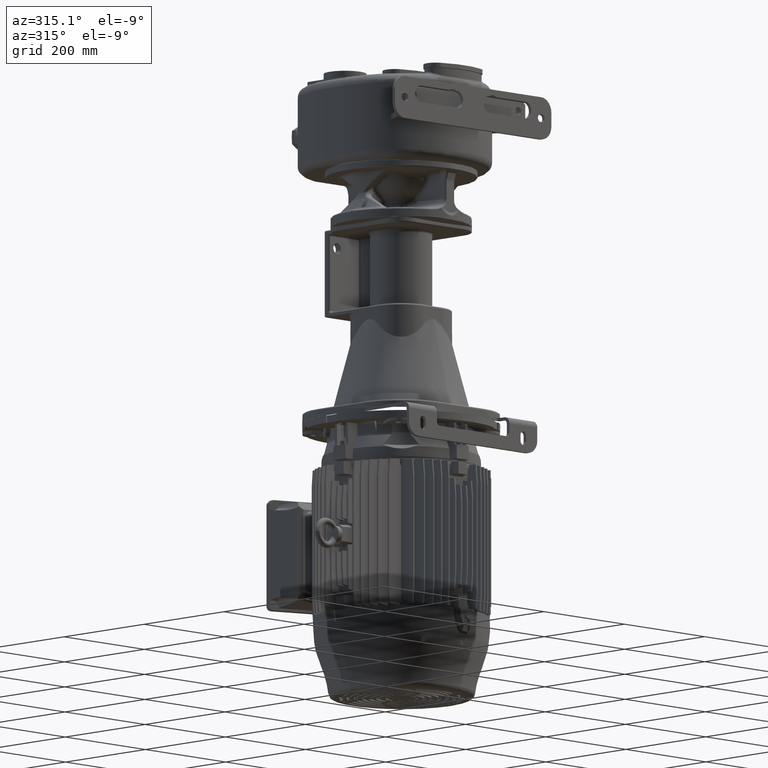
[diagram: clean part render]
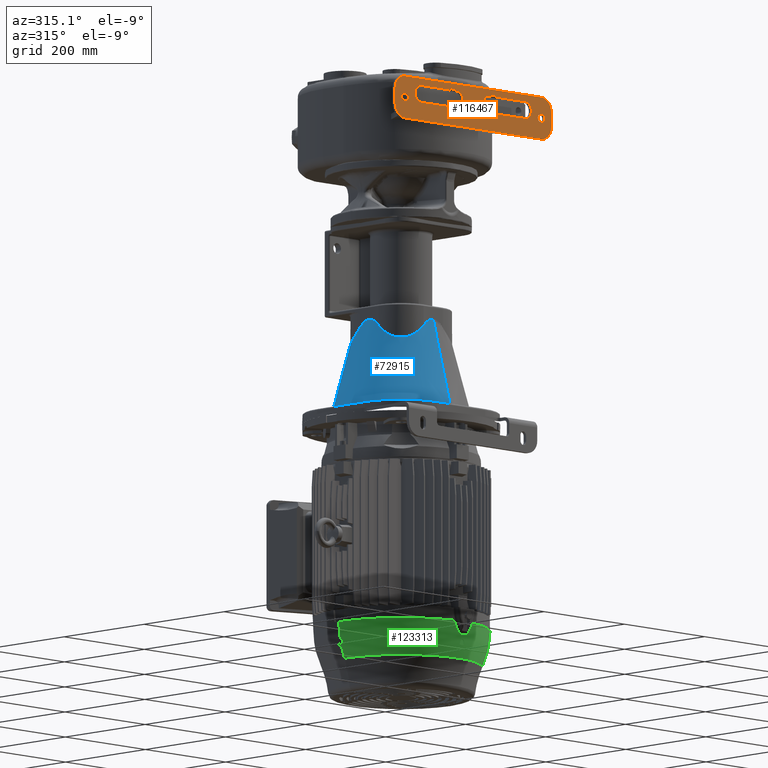
[diagram: same view with three faces highlighted in distinct colors, each labeled with its STEP entity id]
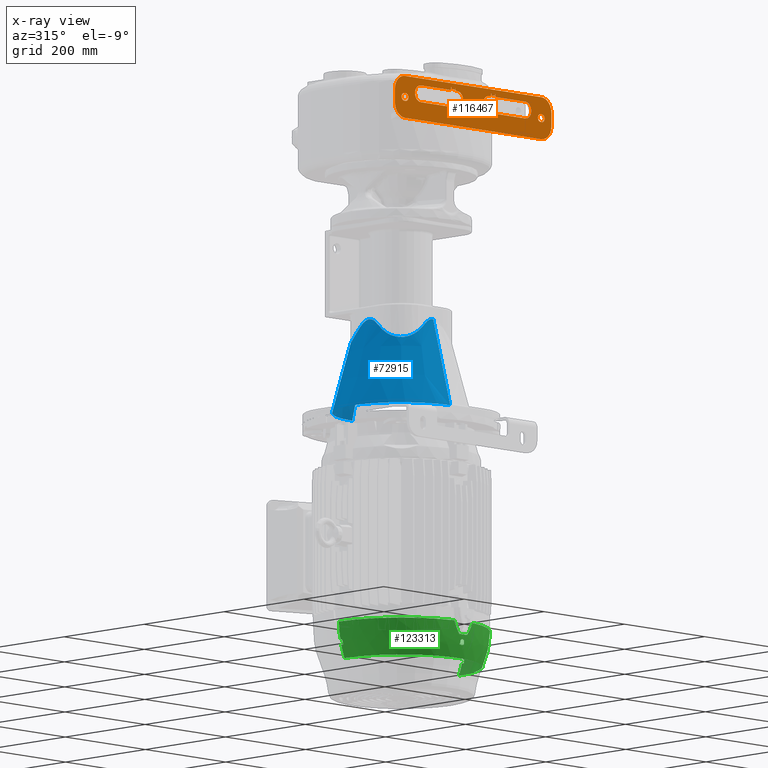
[diagram: x-ray of the same camera — body ghosted, the three highlighted faces saturated]
A machine part, auxiliary view with three faces highlighted in distinct colors.
The next image is the same camera in x-ray (body ghosted, the three faces saturated) — at least one of them is partly hidden behind the body in this view.
Their STEP definitions:

[orange] entity #116467 — the highlighted planar face has unit normal (0, 1, -0).
#28758=CARTESIAN_POINT('',(-1.7E2,-2.E1,2.5E0));
#28759=DIRECTION('',(0.E0,-1.E0,2.017990073229E-14));
#28760=DIRECTION('',(0.E0,2.017941369559E-14,1.E0));
#28761=AXIS2_PLACEMENT_3D('',#28758,#28759,#28760);
#28763=DIRECTION('',(1.E0,0.E0,0.E0));
#28764=VECTOR('',#28763,3.4E2);
#28765=CARTESIAN_POINT('',(-1.7E2,-2.E1,2.75E1));
#28766=LINE('',#28765,#28764);
#28767=CARTESIAN_POINT('',(1.7E2,-2.E1,2.5E0));
#28768=DIRECTION('',(0.E0,-1.E0,2.023221736407E-14));
#28769=DIRECTION('',(1.E0,0.E0,0.E0));
#28770=AXIS2_PLACEMENT_3D('',#28767,#28768,#28769);
#28772=DIRECTION('',(0.E0,-2.032152224274E-14,-1.E0));
#28773=VECTOR('',#28772,2.5E1);
#28774=CARTESIAN_POINT('',(1.95E2,-2.E1,2.5E0));
#28775=LINE('',#28774,#28773);
#28776=CARTESIAN_POINT('',(1.7E2,-2.E1,-2.25E1));
#28777=DIRECTION('',(0.E0,-1.E0,2.023221736407E-14));
#28778=DIRECTION('',(0.E0,-2.017941369559E-14,-1.E0));
#28779=AXIS2_PLACEMENT_3D('',#28776,#28777,#28778);
#28781=DIRECTION('',(-1.E0,0.E0,0.E0));
#28782=VECTOR('',#28781,3.4E2);
#28783=CARTESIAN_POINT('',(1.7E2,-2.E1,-4.75E1));
#28784=LINE('',#28783,#28782);
#28785=CARTESIAN_POINT('',(-1.7E2,-2.E1,-2.25E1));
#28786=DIRECTION('',(0.E0,-1.E0,2.023221736407E-14));
#28787=DIRECTION('',(-1.E0,0.E0,0.E0));
#28788=AXIS2_PLACEMENT_3D('',#28785,#28786,#28787);
#28790=DIRECTION('',(0.E0,2.032152224274E-14,1.E0));
#28791=VECTOR('',#28790,2.5E1);
#28792=CARTESIAN_POINT('',(-1.95E2,-2.E1,-2.25E1));
#28793=LINE('',#28792,#28791);
#28794=CARTESIAN_POINT('',(1.715E2,-2.E1,-1.E1));
#28795=DIRECTION('',(0.E0,1.E0,-2.020605904818E-14));
#28796=DIRECTION('',(0.E0,2.030122102172E-14,1.E0));
#28797=AXIS2_PLACEMENT_3D('',#28794,#28795,#28796);
#28799=DIRECTION('',(1.E0,0.E0,0.E0));
#28800=VECTOR('',#28799,3.E0);
#28801=CARTESIAN_POINT('',(1.685E2,-2.E1,-3.E0));
#28802=LINE('',#28801,#28800);
#28803=CARTESIAN_POINT('',(1.685E2,-2.E1,-1.E1));
#28804=DIRECTION('',(0.E0,1.E0,-2.020605904818E-14));
#28805=DIRECTION('',(0.E0,-2.030122102172E-14,-1.E0));
#28806=AXIS2_PLACEMENT_3D('',#28803,#28804,#28805);
#28808=DIRECTION('',(-1.E0,0.E0,0.E0));
#28809=VECTOR('',#28808,3.E0);
#28810=CARTESIAN_POINT('',(1.715E2,-2.E1,-1.7E1));
#28811=LINE('',#28810,#28809);
#28812=DIRECTION('',(1.E0,0.E0,0.E0));
#28813=VECTOR('',#28812,3.E0);
#28814=CARTESIAN_POINT('',(-1.715E2,-2.E1,-3.E0));
#28815=LINE('',#28814,#28813);
#28816=CARTESIAN_POINT('',(-1.715E2,-2.E1,-1.E1));
#28817=DIRECTION('',(0.E0,1.E0,-2.020605904818E-14));
#28818=DIRECTION('',(0.E0,-2.030122102172E-14,-1.E0));
#28819=AXIS2_PLACEMENT_3D('',#28816,#28817,#28818);
#28821=DIRECTION('',(-1.E0,0.E0,0.E0));
#28822=VECTOR('',#28821,3.E0);
#28823=CARTESIAN_POINT('',(-1.685E2,-2.E1,-1.7E1));
#28824=LINE('',#28823,#28822);
#28825=CARTESIAN_POINT('',(-1.685E2,-2.E1,-1.E1));
#28826=DIRECTION('',(0.E0,1.E0,-2.020605904818E-14));
#28827=DIRECTION('',(0.E0,2.030122102172E-14,1.E0));
#28828=AXIS2_PLACEMENT_3D('',#28825,#28826,#28827);
#28830=DIRECTION('',(1.E0,1.963681742464E-12,1.291895883200E-14));
#28831=VECTOR('',#28830,2.75E-1);
#28832=CARTESIAN_POINT('',(5.46E1,-2.E1,2.E1));
#28833=LINE('',#28832,#28831);
#28834=DIRECTION('',(0.E0,6.868579779014E-14,1.E0));
#28835=VECTOR('',#28834,3.E0);
#28836=CARTESIAN_POINT('',(5.46E1,-2.E1,1.7E1));
#28837=LINE('',#28836,#28835);
#28838=DIRECTION('',(0.E0,6.868579779014E-14,1.E0));
#28839=VECTOR('',#28838,3.E0);
#28840=CARTESIAN_POINT('',(4.54E1,-2.E1,1.7E1));
#28841=LINE('',#28840,#28839);
#28842=DIRECTION('',(1.E0,-1.963681742464E-12,-1.291895883200E-14));
#28843=VECTOR('',#28842,2.75E-1);
#28844=CARTESIAN_POINT('',(4.5125E1,-2.E1,2.E1));
#28845=LINE('',#28844,#28843);
#28846=DIRECTION('',(0.E0,-1.827109891955E-14,-1.E0));
#28847=VECTOR('',#28846,1.75E0);
#28848=CARTESIAN_POINT('',(4.4875E1,-2.E1,1.975E1));
#28849=LINE('',#28848,#28847);
#28850=CARTESIAN_POINT('',(4.1875E1,-2.E1,1.8E1));
#28851=DIRECTION('',(0.E0,-1.E0,2.020605904818E-14));
#28852=DIRECTION('',(0.E0,-2.013204417987E-14,-1.E0));
#28853=AXIS2_PLACEMENT_3D('',#28850,#28851,#28852);
#28855=DIRECTION('',(1.E0,0.E0,0.E0));
#28856=VECTOR('',#28855,1.875E0);
#28857=CARTESIAN_POINT('',(4.E1,-2.E1,1.5E1));
#28858=LINE('',#28857,#28856);
#28859=CARTESIAN_POINT('',(4.E1,-2.E1,1.230127111285E-13));
#28860=DIRECTION('',(0.E0,1.E0,-2.020605904818E-14));
#28861=DIRECTION('',(0.E0,-2.013204417987E-14,-1.E0));
#28862=AXIS2_PLACEMENT_3D('',#28859,#28860,#28861);
#28864=DIRECTION('',(-1.E0,0.E0,0.E0));
#28865=VECTOR('',#28864,9.E1);
#28866=CARTESIAN_POINT('',(1.3E2,-2.E1,-1.5E1));
#28867=LINE('',#28866,#28865);
#28868=CARTESIAN_POINT('',(1.3E2,-2.E1,1.212363542891E-13));
#28869=DIRECTION('',(0.E0,1.E0,-2.020605904818E-14));
#28870=DIRECTION('',(0.E0,2.013204417987E-14,1.E0));
#28871=AXIS2_PLACEMENT_3D('',#28868,#28869,#28870);
#28873=DIRECTION('',(1.E0,0.E0,0.E0));
#28874=VECTOR('',#28873,7.1875E1);
#28875=CARTESIAN_POINT('',(5.8125E1,-2.E1,1.5E1));
#28876=LINE('',#28875,#28874);
#28877=CARTESIAN_POINT('',(5.8125E1,-2.E1,1.8E1));
#28878=DIRECTION('',(0.E0,-1.E0,2.020605904818E-14));
#28879=DIRECTION('',(-1.E0,0.E0,0.E0));
#28880=AXIS2_PLACEMENT_3D('',#28877,#28878,#28879);
#28882=DIRECTION('',(0.E0,-1.827109891955E-14,-1.E0));
#28883=VECTOR('',#28882,1.75E0);
#28884=CARTESIAN_POINT('',(5.5125E1,-2.E1,1.975E1));
#28885=LINE('',#28884,#28883);
#28886=DIRECTION('',(1.E0,1.989519660128E-12,0.E0));
#28887=VECTOR('',#28886,2.75E-1);
#28888=CARTESIAN_POINT('',(-4.54E1,-2.E1,2.E1));
#28889=LINE('',#28888,#28887);
#28890=DIRECTION('',(0.E0,6.750155989721E-14,1.E0));
#28891=VECTOR('',#28890,3.E0);
#28892=CARTESIAN_POINT('',(-4.54E1,-2.E1,1.7E1));
#28893=LINE('',#28892,#28891);
#28894=DIRECTION('',(0.E0,6.750155989721E-14,1.E0));
#28895=VECTOR('',#28894,3.E0);
#28896=CARTESIAN_POINT('',(-5.46E1,-2.E1,1.7E1));
#28897=LINE('',#28896,#28895);
#28898=DIRECTION('',(1.E0,-1.989519660128E-12,0.E0));
#28899=VECTOR('',#28898,2.75E-1);
#28900=CARTESIAN_POINT('',(-5.4875E1,-2.E1,2.E1));
#28901=LINE('',#28900,#28899);
#28902=DIRECTION('',(0.E0,-1.827109891955E-14,-1.E0));
#28903=VECTOR('',#28902,1.75E0);
#28904=CARTESIAN_POINT('',(-5.5125E1,-2.E1,1.975E1));
#28905=LINE('',#28904,#28903);
#28906=CARTESIAN_POINT('',(-5.8125E1,-2.E1,1.8E1));
#28907=DIRECTION('',(0.E0,-1.E0,2.020605904818E-14));
#28908=DIRECTION('',(0.E0,-2.013204417987E-14,-1.E0));
#28909=AXIS2_PLACEMENT_3D('',#28906,#28907,#28908);
#28911=DIRECTION('',(1.E0,0.E0,0.E0));
#28912=VECTOR('',#28911,7.1875E1);
#28913=CARTESIAN_POINT('',(-1.3E2,-2.E1,1.5E1));
#28914=LINE('',#28913,#28912);
#28915=CARTESIAN_POINT('',(-1.3E2,-2.E1,1.052491427345E-13));
#28916=DIRECTION('',(0.E0,1.E0,-2.020605904818E-14));
#28917=DIRECTION('',(0.E0,-2.013204417987E-14,-1.E0));
#28918=AXIS2_PLACEMENT_3D('',#28915,#28916,#28917);
#28920=DIRECTION('',(-1.E0,0.E0,0.E0));
#28921=VECTOR('',#28920,9.E1);
#28922=CARTESIAN_POINT('',(-4.E1,-2.E1,-1.5E1));
#28923=LINE('',#28922,#28921);
#28924=CARTESIAN_POINT('',(-4.E1,-2.E1,1.123545700921E-13));
#28925=DIRECTION('',(0.E0,1.E0,-2.020605904818E-14));
#28926=DIRECTION('',(0.E0,2.013204417987E-14,1.E0));
#28927=AXIS2_PLACEMENT_3D('',#28924,#28925,#28926);
#28929=DIRECTION('',(1.E0,0.E0,0.E0));
#28930=VECTOR('',#28929,1.875E0);
#28931=CARTESIAN_POINT('',(-4.1875E1,-2.E1,1.5E1));
#28932=LINE('',#28931,#28930);
#28933=CARTESIAN_POINT('',(-4.1875E1,-2.E1,1.8E1));
#28934=DIRECTION('',(0.E0,-1.E0,2.020605904818E-14));
#28935=DIRECTION('',(-1.E0,0.E0,0.E0));
#28936=AXIS2_PLACEMENT_3D('',#28933,#28934,#28935);
#28938=DIRECTION('',(0.E0,-1.827109891955E-14,-1.E0));
#28939=VECTOR('',#28938,1.75E0);
#28940=CARTESIAN_POINT('',(-4.4875E1,-2.E1,1.975E1));
#28941=LINE('',#28940,#28939);
#29028=CARTESIAN_POINT('',(5.4875E1,-2.E1,1.975E1));
#29029=DIRECTION('',(0.E0,1.E0,-2.020605904818E-14));
#29030=DIRECTION('',(-2.842170943040E-14,1.421085471520E-14,1.E0));
#29031=AXIS2_PLACEMENT_3D('',#29028,#29029,#29030);
#29136=DIRECTION('',(1.E0,0.E0,0.E0));
#29137=VECTOR('',#29136,9.2E0);
#29138=CARTESIAN_POINT('',(4.54E1,-2.E1,1.7E1));
#29139=LINE('',#29138,#29137);
#29807=CARTESIAN_POINT('',(4.5125E1,-2.E1,1.975E1));
#29808=DIRECTION('',(0.E0,1.E0,-2.020605904818E-14));
#29809=DIRECTION('',(-1.E0,0.E0,-1.421085471520E-14));
#29810=AXIS2_PLACEMENT_3D('',#29807,#29808,#29809);
#29875=CARTESIAN_POINT('',(-4.5125E1,-2.E1,1.975E1));
#29876=DIRECTION('',(0.E0,1.E0,-2.020605904818E-14));
#29877=DIRECTION('',(0.E0,1.421085471520E-14,1.E0));
#29878=AXIS2_PLACEMENT_3D('',#29875,#29876,#29877);
#29941=DIRECTION('',(1.E0,0.E0,0.E0));
#29942=VECTOR('',#29941,9.2E0);
#29943=CARTESIAN_POINT('',(-5.46E1,-2.E1,1.7E1));
#29944=LINE('',#29943,#29942);
#30076=CARTESIAN_POINT('',(-5.4875E1,-2.E1,1.975E1));
#30077=DIRECTION('',(0.E0,1.E0,-2.020605904818E-14));
#30078=DIRECTION('',(-1.E0,0.E0,0.E0));
#30079=AXIS2_PLACEMENT_3D('',#30076,#30077,#30078);
#64105=CARTESIAN_POINT('',(-1.7E2,-2.E1,2.75E1));
#64106=CARTESIAN_POINT('',(-1.95E2,-2.E1,2.5E0));
#64107=VERTEX_POINT('',#64105);
#64108=VERTEX_POINT('',#64106);
#64113=CARTESIAN_POINT('',(1.95E2,-2.E1,2.5E0));
#64114=CARTESIAN_POINT('',(1.7E2,-2.E1,2.75E1));
#64115=VERTEX_POINT('',#64113);
#64116=VERTEX_POINT('',#64114);
#64121=CARTESIAN_POINT('',(1.7E2,-2.E1,-4.75E1));
#64122=CARTESIAN_POINT('',(1.95E2,-2.E1,-2.25E1));
#64123=VERTEX_POINT('',#64121);
#64124=VERTEX_POINT('',#64122);
#64129=CARTESIAN_POINT('',(-1.95E2,-2.E1,-2.25E1));
#64130=CARTESIAN_POINT('',(-1.7E2,-2.E1,-4.75E1));
#64131=VERTEX_POINT('',#64129);
#64132=VERTEX_POINT('',#64130);
#64141=CARTESIAN_POINT('',(1.3E2,-2.E1,-1.5E1));
#64142=CARTESIAN_POINT('',(4.E1,-2.E1,-1.5E1));
#64143=VERTEX_POINT('',#64141);
#64144=VERTEX_POINT('',#64142);
#64145=CARTESIAN_POINT('',(1.3E2,-2.E1,1.5E1));
#64146=VERTEX_POINT('',#64145);
#64147=CARTESIAN_POINT('',(-1.3E2,-2.E1,-1.5E1));
#64148=CARTESIAN_POINT('',(-1.3E2,-2.E1,1.5E1));
#64149=VERTEX_POINT('',#64147);
#64150=VERTEX_POINT('',#64148);
#64157=CARTESIAN_POINT('',(4.E1,-2.E1,1.5E1));
#64158=VERTEX_POINT('',#64157);
#64159=CARTESIAN_POINT('',(-4.E1,-2.E1,1.5E1));
#64160=CARTESIAN_POINT('',(-4.E1,-2.E1,-1.5E1));
#64161=VERTEX_POINT('',#64159);
#64162=VERTEX_POINT('',#64160);
#64169=CARTESIAN_POINT('',(1.715E2,-2.E1,-3.E0));
#64170=CARTESIAN_POINT('',(1.715E2,-2.E1,-1.7E1));
#64171=VERTEX_POINT('',#64169);
#64172=VERTEX_POINT('',#64170);
#64173=CARTESIAN_POINT('',(1.685E2,-2.E1,-1.7E1));
#64174=VERTEX_POINT('',#64173);
#64175=CARTESIAN_POINT('',(1.685E2,-2.E1,-3.E0));
#64176=VERTEX_POINT('',#64175);
#64186=CARTESIAN_POINT('',(4.4875E1,-2.E1,1.975E1));
#64188=VERTEX_POINT('',#64186);
#64190=CARTESIAN_POINT('',(-4.4875E1,-2.E1,1.975E1));
#64192=VERTEX_POINT('',#64190);
#64193=CARTESIAN_POINT('',(5.4875E1,-2.E1,2.E1));
#64194=CARTESIAN_POINT('',(5.5125E1,-2.E1,1.975E1));
#64195=VERTEX_POINT('',#64193);
#64196=VERTEX_POINT('',#64194);
#64197=CARTESIAN_POINT('',(4.5125E1,-2.E1,2.E1));
#64198=VERTEX_POINT('',#64197);
#64199=CARTESIAN_POINT('',(-4.5125E1,-2.E1,2.E1));
#64200=VERTEX_POINT('',#64199);
#64201=CARTESIAN_POINT('',(-5.5125E1,-2.E1,1.975E1));
#64202=CARTESIAN_POINT('',(-5.4875E1,-2.E1,2.E1));
#64203=VERTEX_POINT('',#64201);
#64204=VERTEX_POINT('',#64202);
#64205=CARTESIAN_POINT('',(5.5125E1,-2.E1,1.8E1));
#64206=CARTESIAN_POINT('',(5.8125E1,-2.E1,1.5E1));
#64207=VERTEX_POINT('',#64205);
#64208=VERTEX_POINT('',#64206);
#64215=CARTESIAN_POINT('',(4.1875E1,-2.E1,1.5E1));
#64216=VERTEX_POINT('',#64215);
#64217=CARTESIAN_POINT('',(4.4875E1,-2.E1,1.8E1));
#64218=VERTEX_POINT('',#64217);
#64219=CARTESIAN_POINT('',(-5.8125E1,-2.E1,1.5E1));
#64221=VERTEX_POINT('',#64219);
#64223=CARTESIAN_POINT('',(-5.5125E1,-2.E1,1.8E1));
#64224=VERTEX_POINT('',#64223);
#64229=CARTESIAN_POINT('',(-4.4875E1,-2.E1,1.8E1));
#64230=VERTEX_POINT('',#64229);
#64231=CARTESIAN_POINT('',(-4.1875E1,-2.E1,1.5E1));
#64232=VERTEX_POINT('',#64231);
#64233=CARTESIAN_POINT('',(-1.715E2,-2.E1,-3.E0));
#64234=CARTESIAN_POINT('',(-1.685E2,-2.E1,-3.E0));
#64235=VERTEX_POINT('',#64233);
#64236=VERTEX_POINT('',#64234);
#64237=CARTESIAN_POINT('',(-1.685E2,-2.E1,-1.7E1));
#64238=VERTEX_POINT('',#64237);
#64239=CARTESIAN_POINT('',(-1.715E2,-2.E1,-1.7E1));
#64240=VERTEX_POINT('',#64239);
#64270=CARTESIAN_POINT('',(5.46E1,-2.E1,1.7E1));
#64272=VERTEX_POINT('',#64270);
#64293=CARTESIAN_POINT('',(4.54E1,-2.E1,1.7E1));
#64295=VERTEX_POINT('',#64293);
#64319=CARTESIAN_POINT('',(-5.46E1,-2.E1,1.7E1));
#64320=CARTESIAN_POINT('',(-4.54E1,-2.E1,1.7E1));
#64321=VERTEX_POINT('',#64319);
#64322=VERTEX_POINT('',#64320);
#64531=CARTESIAN_POINT('',(5.46E1,-2.E1,2.E1));
#64533=VERTEX_POINT('',#64531);
#64536=CARTESIAN_POINT('',(4.54E1,-2.E1,2.E1));
#64538=VERTEX_POINT('',#64536);
#64540=CARTESIAN_POINT('',(-5.46E1,-2.E1,2.E1));
#64542=VERTEX_POINT('',#64540);
#64543=CARTESIAN_POINT('',(-4.54E1,-2.E1,2.E1));
#64545=VERTEX_POINT('',#64543);
#116357=CARTESIAN_POINT('',(0.E0,-2.E1,-1.E1));
#116358=DIRECTION('',(0.E0,1.E0,-2.020605904818E-14));
#116359=DIRECTION('',(-1.E0,0.E0,0.E0));
#116360=AXIS2_PLACEMENT_3D('',#116357,#116358,#116359);
#116361=PLANE('',#116360);
#116362=ORIENTED_EDGE('',*,*,#116347,.F.);
#116364=ORIENTED_EDGE('',*,*,#116363,.T.);
#116366=ORIENTED_EDGE('',*,*,#116365,.F.);
#116368=ORIENTED_EDGE('',*,*,#116367,.T.);
#116370=ORIENTED_EDGE('',*,*,#116369,.F.);
#116372=ORIENTED_EDGE('',*,*,#116371,.T.);
#116374=ORIENTED_EDGE('',*,*,#116373,.F.);
#116376=ORIENTED_EDGE('',*,*,#116375,.T.);
#116377=EDGE_LOOP('',(#116362,#116364,#116366,#116368,#116370,#116372,#116374,
#116376));
#116378=FACE_OUTER_BOUND('',#116377,.F.);
#116380=ORIENTED_EDGE('',*,*,#116379,.F.);
#116382=ORIENTED_EDGE('',*,*,#116381,.F.);
#116384=ORIENTED_EDGE('',*,*,#116383,.F.);
#116386=ORIENTED_EDGE('',*,*,#116385,.F.);
#116387=EDGE_LOOP('',(#116380,#116382,#116384,#116386));
#116388=FACE_BOUND('',#116387,.F.);
#116390=ORIENTED_EDGE('',*,*,#116389,.F.);
#116392=ORIENTED_EDGE('',*,*,#116391,.F.);
#116394=ORIENTED_EDGE('',*,*,#116393,.F.);
#116396=ORIENTED_EDGE('',*,*,#116395,.F.);
#116397=EDGE_LOOP('',(#116390,#116392,#116394,#116396));
#116398=FACE_BOUND('',#116397,.F.);
#116400=ORIENTED_EDGE('',*,*,#116399,.F.);
#116402=ORIENTED_EDGE('',*,*,#116401,.F.);
#116404=ORIENTED_EDGE('',*,*,#116403,.F.);
#116406=ORIENTED_EDGE('',*,*,#116405,.T.);
#116408=ORIENTED_EDGE('',*,*,#116407,.F.);
#116410=ORIENTED_EDGE('',*,*,#116409,.F.);
#116412=ORIENTED_EDGE('',*,*,#116411,.T.);
#116414=ORIENTED_EDGE('',*,*,#116413,.F.);
#116416=ORIENTED_EDGE('',*,*,#116415,.F.);
#116418=ORIENTED_EDGE('',*,*,#116417,.F.);
#116420=ORIENTED_EDGE('',*,*,#116419,.F.);
#116422=ORIENTED_EDGE('',*,*,#116421,.F.);
#116424=ORIENTED_EDGE('',*,*,#116423,.F.);
#116426=ORIENTED_EDGE('',*,*,#116425,.F.);
#116428=ORIENTED_EDGE('',*,*,#116427,.F.);
#116430=ORIENTED_EDGE('',*,*,#116429,.F.);
#116431=EDGE_LOOP('',(#116400,#116402,#116404,#116406,#116408,#116410,#116412,
#116414,#116416,#116418,#116420,#116422,#116424,#116426,#116428,#116430));
#116432=FACE_BOUND('',#116431,.F.);
#116434=ORIENTED_EDGE('',*,*,#116433,.F.);
#116436=ORIENTED_EDGE('',*,*,#116435,.F.);
#116438=ORIENTED_EDGE('',*,*,#116437,.F.);
#116440=ORIENTED_EDGE('',*,*,#116439,.T.);
#116442=ORIENTED_EDGE('',*,*,#116441,.F.);
#116444=ORIENTED_EDGE('',*,*,#116443,.F.);
#116446=ORIENTED_EDGE('',*,*,#116445,.T.);
#116448=ORIENTED_EDGE('',*,*,#116447,.F.);
#116450=ORIENTED_EDGE('',*,*,#116449,.F.);
#116452=ORIENTED_EDGE('',*,*,#116451,.F.);
#116454=ORIENTED_EDGE('',*,*,#116453,.F.);
#116456=ORIENTED_EDGE('',*,*,#116455,.F.);
#116458=ORIENTED_EDGE('',*,*,#116457,.F.);
#116460=ORIENTED_EDGE('',*,*,#116459,.F.);
#116462=ORIENTED_EDGE('',*,*,#116461,.F.);
#116464=ORIENTED_EDGE('',*,*,#116463,.F.);
#116465=EDGE_LOOP('',(#116434,#116436,#116438,#116440,#116442,#116444,#116446,
#116448,#116450,#116452,#116454,#116456,#116458,#116460,#116462,#116464));
#116466=FACE_BOUND('',#116465,.F.);
#116467=ADVANCED_FACE('',(#116378,#116388,#116398,#116432,#116466),#116361,.F.);
#28762=CIRCLE('',#28761,2.5E1);
#28771=CIRCLE('',#28770,2.5E1);
#28780=CIRCLE('',#28779,2.5E1);
#28789=CIRCLE('',#28788,2.5E1);
#28798=CIRCLE('',#28797,7.E0);
#28807=CIRCLE('',#28806,7.E0);
#28820=CIRCLE('',#28819,7.E0);
#28829=CIRCLE('',#28828,7.E0);
#28854=CIRCLE('',#28853,3.E0);
#28863=CIRCLE('',#28862,1.5E1);
#28872=CIRCLE('',#28871,1.5E1);
#28881=CIRCLE('',#28880,3.E0);
#28910=CIRCLE('',#28909,3.E0);
#28919=CIRCLE('',#28918,1.5E1);
#28928=CIRCLE('',#28927,1.5E1);
#28937=CIRCLE('',#28936,3.E0);
#29032=CIRCLE('',#29031,2.5E-1);
#29811=CIRCLE('',#29810,2.5E-1);
#29879=CIRCLE('',#29878,2.5E-1);
#30080=CIRCLE('',#30079,2.5E-1);
#116347=EDGE_CURVE('',#64107,#64108,#28762,.T.);
#116363=EDGE_CURVE('',#64107,#64116,#28766,.T.);
#116365=EDGE_CURVE('',#64115,#64116,#28771,.T.);
#116367=EDGE_CURVE('',#64115,#64124,#28775,.T.);
#116369=EDGE_CURVE('',#64123,#64124,#28780,.T.);
#116371=EDGE_CURVE('',#64123,#64132,#28784,.T.);
#116373=EDGE_CURVE('',#64131,#64132,#28789,.T.);
#116375=EDGE_CURVE('',#64131,#64108,#28793,.T.);
#116379=EDGE_CURVE('',#64171,#64172,#28798,.T.);
#116381=EDGE_CURVE('',#64176,#64171,#28802,.T.);
#116383=EDGE_CURVE('',#64174,#64176,#28807,.T.);
#116385=EDGE_CURVE('',#64172,#64174,#28811,.T.);
#116389=EDGE_CURVE('',#64235,#64236,#28815,.T.);
#116391=EDGE_CURVE('',#64240,#64235,#28820,.T.);
#116393=EDGE_CURVE('',#64238,#64240,#28824,.T.);
#116395=EDGE_CURVE('',#64236,#64238,#28829,.T.);
#116399=EDGE_CURVE('',#64533,#64195,#28833,.T.);
#116401=EDGE_CURVE('',#64272,#64533,#28837,.T.);
#116403=EDGE_CURVE('',#64295,#64272,#29139,.T.);
#116405=EDGE_CURVE('',#64295,#64538,#28841,.T.);
#116407=EDGE_CURVE('',#64198,#64538,#28845,.T.);
#116409=EDGE_CURVE('',#64188,#64198,#29811,.T.);
#116411=EDGE_CURVE('',#64188,#64218,#28849,.T.);
#116413=EDGE_CURVE('',#64216,#64218,#28854,.T.);
#116415=EDGE_CURVE('',#64158,#64216,#28858,.T.);
#116417=EDGE_CURVE('',#64144,#64158,#28863,.T.);
#116419=EDGE_CURVE('',#64143,#64144,#28867,.T.);
#116421=EDGE_CURVE('',#64146,#64143,#28872,.T.);
#116423=EDGE_CURVE('',#64208,#64146,#28876,.T.);
#116425=EDGE_CURVE('',#64207,#64208,#28881,.T.);
#116427=EDGE_CURVE('',#64196,#64207,#28885,.T.);
#116429=EDGE_CURVE('',#64195,#64196,#29032,.T.);
#116433=EDGE_CURVE('',#64545,#64200,#28889,.T.);
#116435=EDGE_CURVE('',#64322,#64545,#28893,.T.);
#116437=EDGE_CURVE('',#64321,#64322,#29944,.T.);
#116439=EDGE_CURVE('',#64321,#64542,#28897,.T.);
#116441=EDGE_CURVE('',#64204,#64542,#28901,.T.);
#116443=EDGE_CURVE('',#64203,#64204,#30080,.T.);
#116445=EDGE_CURVE('',#64203,#64224,#28905,.T.);
#116447=EDGE_CURVE('',#64221,#64224,#28910,.T.);
#116449=EDGE_CURVE('',#64150,#64221,#28914,.T.);
#116451=EDGE_CURVE('',#64149,#64150,#28919,.T.);
#116453=EDGE_CURVE('',#64162,#64149,#28923,.T.);
#116455=EDGE_CURVE('',#64161,#64162,#28928,.T.);
#116457=EDGE_CURVE('',#64232,#64161,#28932,.T.);
#116459=EDGE_CURVE('',#64230,#64232,#28937,.T.);
#116461=EDGE_CURVE('',#64192,#64230,#28941,.T.);
#116463=EDGE_CURVE('',#64200,#64192,#29879,.T.);

[blue] entity #72915 — the highlighted conical surface has half-angle 15 deg.
#1039=CARTESIAN_POINT('',(0.E0,1.6E2,-5.362764571353E2));
#1040=DIRECTION('',(0.E0,0.E0,1.E0));
#1041=DIRECTION('',(0.E0,1.E0,0.E0));
#1042=AXIS2_PLACEMENT_3D('',#1039,#1040,#1041);
#1064=CARTESIAN_POINT('',(-2.319506396795E1,2.402162628892E2,
-3.900399315816E2));
#1065=CARTESIAN_POINT('',(-2.287418746222E1,2.402132993745E2,
-3.896966612033E2));
#1066=CARTESIAN_POINT('',(-2.224084768972E1,2.402075437483E2,
-3.890321550968E2));
#1067=CARTESIAN_POINT('',(-2.131949582270E1,2.401994397647E2,
-3.881021275295E2));
#1068=CARTESIAN_POINT('',(-2.042150762754E1,2.401918041646E2,
-3.872307420854E2));
#1069=CARTESIAN_POINT('',(-1.954661675427E1,2.401846219893E2,
-3.864154143226E2));
#1070=CARTESIAN_POINT('',(-1.869380466467E1,2.401778715921E2,
-3.856528735594E2));
#1071=CARTESIAN_POINT('',(-1.786158119465E1,2.401715285244E2,
-3.849396561654E2));
#1072=CARTESIAN_POINT('',(-1.704905493887E1,2.401655738188E2,
-3.842730068204E2));
#1073=CARTESIAN_POINT('',(-1.625506952645E1,2.401599871977E2,
-3.836501063142E2));
#1074=CARTESIAN_POINT('',(-1.547864792701E1,2.401547505352E2,
-3.830684482682E2));
#1075=CARTESIAN_POINT('',(-1.471880435732E1,2.401498464369E2,
-3.825256670963E2));
#1076=CARTESIAN_POINT('',(-1.397460518618E1,2.401452586521E2,
-3.820195802402E2));
#1077=CARTESIAN_POINT('',(-1.324514838656E1,2.401409718692E2,
-3.815481617439E2));
#1078=CARTESIAN_POINT('',(-1.252956465863E1,2.401369717259E2,
-3.811095354966E2));
#1079=CARTESIAN_POINT('',(-1.182701515256E1,2.401332447776E2,
-3.807019657138E2));
#1080=CARTESIAN_POINT('',(-1.113668896707E1,2.401297784685E2,
-3.803238482194E2));
#1081=CARTESIAN_POINT('',(-1.045780146186E1,2.401265611032E2,
-3.799737027463E2));
#1082=CARTESIAN_POINT('',(-9.789592189105E0,2.401235818186E2,
-3.796501656047E2));
#1083=CARTESIAN_POINT('',(-9.131323584371E0,2.401208305512E2,
-3.793519832284E2));
#1084=CARTESIAN_POINT('',(-8.482279031036E0,2.401182979880E2,
-3.790780058372E2));
#1085=CARTESIAN_POINT('',(-7.841761047105E0,2.401159755448E2,
-3.788271817821E2));
#1086=CARTESIAN_POINT('',(-7.209089810032E0,2.401138553448E2,
-3.785985524978E2));
#1087=CARTESIAN_POINT('',(-6.583601576179E0,2.401119301963E2,
-3.783912478341E2));
#1088=CARTESIAN_POINT('',(-5.964647392062E0,2.401101935746E2,
-3.782044819385E2));
#1089=CARTESIAN_POINT('',(-5.351591880112E0,2.401086396E2,-3.780375494264E2));
#1090=CARTESIAN_POINT('',(-4.743810151388E0,2.401072630211E2,
-3.778898217695E2));
#1091=CARTESIAN_POINT('',(-4.140694689083E0,2.401060591903E2,
-3.777607455392E2));
#1092=CARTESIAN_POINT('',(-3.541626928090E0,2.401050239900E2,
-3.776498351888E2));
#1093=CARTESIAN_POINT('',(-2.946051406319E0,2.401041539665E2,
-3.775566825529E2));
#1094=CARTESIAN_POINT('',(-2.353296983220E0,2.401034460419E2,
-3.774809291986E2));
#1095=CARTESIAN_POINT('',(-1.762910120099E0,2.401028980134E2,
-3.774223104279E2));
#1096=CARTESIAN_POINT('',(-1.174233170080E0,2.401025078163E2,
-3.773805923599E2));
#1097=CARTESIAN_POINT('',(-5.864046955941E-1,2.401022742274E2,
-3.773556206760E2));
#1098=CARTESIAN_POINT('',(-1.953539256055E-1,2.401022225313E2,
-3.773500950155E2));
#1099=CARTESIAN_POINT('',(0.E0,2.401022225205E2,-3.773500949365E2));
#1101=CARTESIAN_POINT('',(-8.021626288916E1,1.831950639680E2,
-3.900399315817E2));
#1102=CARTESIAN_POINT('',(-8.022011771017E1,1.836124522066E2,
-3.904864490224E2));
#1103=CARTESIAN_POINT('',(-8.021852575427E1,1.844421410406E2,
-3.913623150317E2));
#1104=CARTESIAN_POINT('',(-8.018931626950E1,1.856695740913E2,
-3.926244638264E2));
#1105=CARTESIAN_POINT('',(-8.013434473179E1,1.868802513174E2,
-3.938370522077E2));
#1106=CARTESIAN_POINT('',(-8.005464878576E1,1.880736709673E2,
-3.950012074292E2));
#1107=CARTESIAN_POINT('',(-7.995125200834E1,1.892495607053E2,
-3.961182425964E2));
#1108=CARTESIAN_POINT('',(-7.982513233572E1,1.904078567539E2,
-3.971895996406E2));
#1109=CARTESIAN_POINT('',(-7.967724886064E1,1.915484110972E2,
-3.982165745859E2));
#1110=CARTESIAN_POINT('',(-7.950852229999E1,1.926711891877E2,
-3.992005055851E2));
#1111=CARTESIAN_POINT('',(-7.931984262418E1,1.937761725225E2,
-4.001426814203E2));
#1112=CARTESIAN_POINT('',(-7.911206530900E1,1.948633875656E2,
-4.010443700859E2));
#1113=CARTESIAN_POINT('',(-7.888601139262E1,1.959328947246E2,
-4.019068094613E2));
#1114=CARTESIAN_POINT('',(-7.864246702506E1,1.969847866306E2,
-4.027312070446E2));
#1115=CARTESIAN_POINT('',(-7.838218295718E1,1.980191860670E2,
-4.035187391559E2));
#1116=CARTESIAN_POINT('',(-7.810587450417E1,1.990362427580E2,
-4.042705493827E2));
#1117=CARTESIAN_POINT('',(-7.781422145694E1,2.000361310687E2,
-4.049877478207E2));
#1118=CARTESIAN_POINT('',(-7.750786824066E1,2.010190472540E2,
-4.056714099701E2));
#1119=CARTESIAN_POINT('',(-7.718742410234E1,2.019852073797E2,
-4.063225764357E2));
#1120=CARTESIAN_POINT('',(-7.685346339600E1,2.029348451133E2,
-4.069422523904E2));
#1121=CARTESIAN_POINT('',(-7.650652596539E1,2.038682095814E2,
-4.075314071251E2));
#1122=CARTESIAN_POINT('',(-7.614711761164E1,2.047855633109E2,
-4.080909736914E2));
#1123=CARTESIAN_POINT('',(-7.577571061553E1,2.056871803118E2,
-4.086218486699E2));
#1124=CARTESIAN_POINT('',(-7.539274431817E1,2.065733442367E2,
-4.091248919952E2));
#1125=CARTESIAN_POINT('',(-7.499862591464E1,2.074443463376E2,
-4.096009267655E2));
#1126=CARTESIAN_POINT('',(-7.459373102316E1,2.083004841290E2,
-4.100507394540E2));
#1127=CARTESIAN_POINT('',(-7.417840438663E1,2.091420598348E2,
-4.104750799372E2));
#1128=CARTESIAN_POINT('',(-7.375296060737E1,2.099693789196E2,
-4.108746615866E2));
#1129=CARTESIAN_POINT('',(-7.331768491248E1,2.107827486822E2,
-4.112501613929E2));
#1130=CARTESIAN_POINT('',(-7.287283392127E1,2.115824769622E2,
-4.116022201532E2));
#1131=CARTESIAN_POINT('',(-7.241863639245E1,2.123688709555E2,
-4.119314426837E2));
#1132=CARTESIAN_POINT('',(-7.195529425926E1,2.131422357281E2,
-4.122383980795E2));
#1133=CARTESIAN_POINT('',(-7.148298318037E1,2.139028735045E2,
-4.125236200509E2));
#1134=CARTESIAN_POINT('',(-7.100185338069E1,2.146510825333E2,
-4.127876071365E2));
#1135=CARTESIAN_POINT('',(-7.051203032396E1,2.153871562775E2,
-4.130308230299E2));
#1136=CARTESIAN_POINT('',(-7.001361551409E1,2.161113824249E2,
-4.132536968134E2));
#1137=CARTESIAN_POINT('',(-6.950668738865E1,2.168240418317E2,
-4.134566231834E2));
#1138=CARTESIAN_POINT('',(-6.899130184557E1,2.175254080177E2,
-4.136399628229E2));
#1139=CARTESIAN_POINT('',(-6.846749333356E1,2.182157459829E2,
-4.138040427455E2));
#1140=CARTESIAN_POINT('',(-6.793527513110E1,2.188953119888E2,
-4.139491565313E2));
#1141=CARTESIAN_POINT('',(-6.739464025768E1,2.195643525410E2,
-4.140755644586E2));
#1142=CARTESIAN_POINT('',(-6.684556211359E1,2.202231037695E2,
-4.141834937396E2));
#1143=CARTESIAN_POINT('',(-6.628799509698E1,2.208717908301E2,
-4.142731387275E2));
#1144=CARTESIAN_POINT('',(-6.572187530817E1,2.215106271955E2,
-4.143446610627E2));
#1145=CARTESIAN_POINT('',(-6.514712115206E1,2.221398140815E2,
-4.143981898372E2));
#1146=CARTESIAN_POINT('',(-6.456363393019E1,2.227595399542E2,
-4.144338219354E2));
#1147=CARTESIAN_POINT('',(-6.397129849437E1,2.233699797946E2,
-4.144516218949E2));
#1148=CARTESIAN_POINT('',(-6.336998383484E1,2.239712945150E2,
-4.144516219533E2));
#1149=CARTESIAN_POINT('',(-6.275954378230E1,2.245636302749E2,
-4.144338221058E2));
#1150=CARTESIAN_POINT('',(-6.213981749776E1,2.251471179899E2,
-4.143981900880E2));
#1151=CARTESIAN_POINT('',(-6.151062996423E1,2.257218728230E2,
-4.143446613410E2));
#1152=CARTESIAN_POINT('',(-6.087179301250E1,2.262879931983E2,
-4.142731390076E2));
#1153=CARTESIAN_POINT('',(-6.022310536799E1,2.268455607658E2,
-4.141834939866E2));
#1154=CARTESIAN_POINT('',(-5.956435362176E1,2.273946393745E2,
-4.140755646522E2));
#1155=CARTESIAN_POINT('',(-5.889531255256E1,2.279352746875E2,
-4.139491566501E2));
#1156=CARTESIAN_POINT('',(-5.821574596E1,2.284674933563E2,-4.138040427456E2));
#1157=CARTESIAN_POINT('',(-5.752540739980E1,2.289913023109E2,
-4.136399626717E2));
#1158=CARTESIAN_POINT('',(-5.682404071095E1,2.295066882029E2,
-4.134566228815E2));
#1159=CARTESIAN_POINT('',(-5.611138081340E1,2.300136166448E2,
-4.132536963386E2));
#1160=CARTESIAN_POINT('',(-5.538715420135E1,2.305120317325E2,
-4.130308223705E2));
#1161=CARTESIAN_POINT('',(-5.465107992504E1,2.310018550910E2,
-4.127876062495E2));
#1162=CARTESIAN_POINT('',(-5.390287036986E1,2.314829851646E2,
-4.125236189135E2));
#1163=CARTESIAN_POINT('',(-5.314223212768E1,2.319552964584E2,
-4.122383966926E2));
#1164=CARTESIAN_POINT('',(-5.236886689853E1,2.324186387823E2,
-4.119314410328E2));
#1165=CARTESIAN_POINT('',(-5.158247243869E1,2.328728364884E2,
-4.116022182133E2));
#1166=CARTESIAN_POINT('',(-5.078274368009E1,2.333176876449E2,
-4.112501591403E2));
#1167=CARTESIAN_POINT('',(-4.996937347906E1,2.337529634642E2,
-4.108746590192E2));
#1168=CARTESIAN_POINT('',(-4.914205402416E1,2.341784073162E2,
-4.104750770709E2));
#1169=CARTESIAN_POINT('',(-4.830047798162E1,2.345937339953E2,
-4.100507362911E2));
#1170=CARTESIAN_POINT('',(-4.744433987424E1,2.349986289066E2,
-4.096009233027E2));
#1171=CARTESIAN_POINT('',(-4.657333750582E1,2.353927472963E2,
-4.091248882464E2));
#1172=CARTESIAN_POINT('',(-4.568717337038E1,2.357757135457E2,
-4.086218446569E2));
#1173=CARTESIAN_POINT('',(-4.478555620733E1,2.361471204666E2,
-4.080909694340E2));
#1174=CARTESIAN_POINT('',(-4.386820235604E1,2.365065287236E2,
-4.075314026411E2));
#1175=CARTESIAN_POINT('',(-4.293483782726E1,2.368534660309E2,
-4.069422477134E2));
#1176=CARTESIAN_POINT('',(-4.198520007365E1,2.371874265980E2,
-4.063225715895E2));
#1177=CARTESIAN_POINT('',(-4.101903995718E1,2.375078705870E2,
-4.056714049727E2));
#1178=CARTESIAN_POINT('',(-4.003612384332E1,2.378142236353E2,
-4.049877427152E2));
#1179=CARTESIAN_POINT('',(-3.903623570068E1,2.381058764902E2,
-4.042705442414E2));
#1180=CARTESIAN_POINT('',(-3.801917921088E1,2.383821847493E2,
-4.035187340104E2));
#1181=CARTESIAN_POINT('',(-3.698477997667E1,2.386424686302E2,
-4.027312019015E2));
#1182=CARTESIAN_POINT('',(-3.593288839565E1,2.388860127910E2,
-4.019068044263E2));
#1183=CARTESIAN_POINT('',(-3.486338168787E1,2.391120664883E2,
-4.010443652751E2));
#1184=CARTESIAN_POINT('',(-3.377616709112E1,2.393198436036E2,
-4.001426768486E2));
#1185=CARTESIAN_POINT('',(-3.267118419705E1,2.395085230973E2,
-3.992005012670E2));
#1186=CARTESIAN_POINT('',(-3.154840675778E1,2.396772494629E2,
-3.982165707247E2));
#1187=CARTESIAN_POINT('',(-3.040785311206E1,2.398251327649E2,
-3.971895963114E2));
#1188=CARTESIAN_POINT('',(-2.924955784504E1,2.399512522844E2,
-3.961182399080E2));
#1189=CARTESIAN_POINT('',(-2.807366861778E1,2.400546489658E2,
-3.950012051658E2));
#1190=CARTESIAN_POINT('',(-2.688024919521E1,2.401343448473E2,
-3.938370501055E2));
#1191=CARTESIAN_POINT('',(-2.566957267590E1,2.401893163137E2,
-3.926244623845E2));
#1192=CARTESIAN_POINT('',(-2.444214023472E1,2.402185257587E2,
-3.913623141838E2));
#1193=CARTESIAN_POINT('',(-2.361245192674E1,2.402201177096E2,
-3.904864487266E2));
#1194=CARTESIAN_POINT('',(-2.319506396795E1,2.402162628892E2,
-3.900399315816E2));
#1196=CARTESIAN_POINT('',(-8.021626288916E1,1.368049360321E2,
-3.900399315817E2));
#1197=CARTESIAN_POINT('',(-8.021328989924E1,1.371268386844E2,
-3.896955634528E2));
#1198=CARTESIAN_POINT('',(-8.020751668234E1,1.377621483776E2,
-3.890290337876E2));
#1199=CARTESIAN_POINT('',(-8.019939059548E1,1.386861650662E2,
-3.880964902402E2));
#1200=CARTESIAN_POINT('',(-8.019173636274E1,1.395865873945E2,
-3.872230148668E2));
#1201=CARTESIAN_POINT('',(-8.018454065031E1,1.404634547509E2,
-3.864061962461E2));
#1202=CARTESIAN_POINT('',(-8.017777924483E1,1.413180589846E2,
-3.856424671009E2));
#1203=CARTESIAN_POINT('',(-8.017142860753E1,1.421517620319E2,
-3.849284505360E2));
#1204=CARTESIAN_POINT('',(-8.016546891881E1,1.429655333734E2,
-3.842612892784E2));
#1205=CARTESIAN_POINT('',(-8.015987964467E1,1.437605291073E2,
-3.836381379350E2));
#1206=CARTESIAN_POINT('',(-8.015464232503E1,1.445377444874E2,
-3.830564497355E2));
#1207=CARTESIAN_POINT('',(-8.014973925952E1,1.452981803632E2,
-3.825138249125E2));
#1208=CARTESIAN_POINT('',(-8.014515395600E1,1.460427845169E2,
-3.820080501039E2));
#1209=CARTESIAN_POINT('',(-8.014087086657E1,1.467724722993E2,
-3.815370716393E2));
#1210=CARTESIAN_POINT('',(-8.013687540516E1,1.474881254715E2,
-3.810989885150E2));
#1211=CARTESIAN_POINT('',(-8.013315392001E1,1.481905947504E2,
-3.806920425225E2));
#1212=CARTESIAN_POINT('',(-8.012969366959E1,1.488807022473E2,
-3.803146093907E2));
#1213=CARTESIAN_POINT('',(-8.012648279559E1,1.495592433843E2,
-3.799651907991E2));
#1214=CARTESIAN_POINT('',(-8.012351029963E1,1.502269883357E2,
-3.796424072043E2));
#1215=CARTESIAN_POINT('',(-8.012076597811E1,1.508846838206E2,
-3.793449908228E2));
#1216=CARTESIAN_POINT('',(-8.011824038779E1,1.515330554789E2,
-3.790717790360E2));
#1217=CARTESIAN_POINT('',(-8.011592483048E1,1.521728093562E2,
-3.788217088051E2));
#1218=CARTESIAN_POINT('',(-8.011381133321E1,1.528046335120E2,
-3.785938114634E2));
#1219=CARTESIAN_POINT('',(-8.011189262639E1,1.534291994826E2,
-3.783872079978E2));
#1220=CARTESIAN_POINT('',(-8.011016213149E1,1.540471637689E2,
-3.782011047769E2));
#1221=CARTESIAN_POINT('',(-8.010861391021E1,1.546591688851E2,
-3.780347896516E2));
#1222=CARTESIAN_POINT('',(-8.010724261494E1,1.552658448465E2,
-3.778876282816E2));
#1223=CARTESIAN_POINT('',(-8.010604351542E1,1.558678108699E2,
-3.777590611044E2));
#1224=CARTESIAN_POINT('',(-8.010501248004E1,1.564656765742E2,
-3.776486006362E2));
#1225=CARTESIAN_POINT('',(-8.010414596739E1,1.570600432241E2,
-3.775558291267E2));
#1226=CARTESIAN_POINT('',(-8.010344101282E1,1.576515049163E2,
-3.774803965311E2));
#1227=CARTESIAN_POINT('',(-8.010289522929E1,1.582406498113E2,
-3.774220188441E2));
#1228=CARTESIAN_POINT('',(-8.010250674810E1,1.588280611676E2,
-3.773804765350E2));
#1229=CARTESIAN_POINT('',(-8.010227420198E1,1.594143187040E2,
-3.773556134091E2));
#1230=CARTESIAN_POINT('',(-8.010219677741E1,1.599999999012E2,
-3.773473360623E2));
#1231=CARTESIAN_POINT('',(-8.010227420200E1,1.605856810983E2,
-3.773556134038E2));
#1232=CARTESIAN_POINT('',(-8.010250674811E1,1.611719386344E2,
-3.773804765242E2));
#1233=CARTESIAN_POINT('',(-8.010289522921E1,1.617593499901E2,
-3.774220188275E2));
#1234=CARTESIAN_POINT('',(-8.010344101252E1,1.623484948845E2,
-3.774803965082E2));
#1235=CARTESIAN_POINT('',(-8.010414596702E1,1.629399565759E2,
-3.775558290980E2));
#1236=CARTESIAN_POINT('',(-8.010501247966E1,1.635343232247E2,
-3.776486006017E2));
#1237=CARTESIAN_POINT('',(-8.010604351505E1,1.641321889276E2,
-3.777590610641E2));
#1238=CARTESIAN_POINT('',(-8.010724261458E1,1.647341549493E2,
-3.778876282353E2));
#1239=CARTESIAN_POINT('',(-8.010861390980E1,1.653408309089E2,
-3.780347895990E2));
#1240=CARTESIAN_POINT('',(-8.011016213098E1,1.659528360232E2,
-3.782011047175E2));
#1241=CARTESIAN_POINT('',(-8.011189262571E1,1.665708003076E2,
-3.783872079312E2));
#1242=CARTESIAN_POINT('',(-8.011381133247E1,1.671953662759E2,
-3.785938113898E2));
#1243=CARTESIAN_POINT('',(-8.011592482971E1,1.678271904291E2,
-3.788217087244E2));
#1244=CARTESIAN_POINT('',(-8.011824038699E1,1.684669443034E2,
-3.790717789476E2));
#1245=CARTESIAN_POINT('',(-8.012076597726E1,1.691153159584E2,
-3.793449907264E2));
#1246=CARTESIAN_POINT('',(-8.012351029868E1,1.697730114399E2,
-3.796424070994E2));
#1247=CARTESIAN_POINT('',(-8.012648279452E1,1.704407563880E2,
-3.799651906854E2));
#1248=CARTESIAN_POINT('',(-8.012969366846E1,1.711192975214E2,
-3.803146092679E2));
#1249=CARTESIAN_POINT('',(-8.013315391883E1,1.718094050143E2,
-3.806920423902E2));
#1250=CARTESIAN_POINT('',(-8.013687540390E1,1.725118742887E2,
-3.810989883723E2));
#1251=CARTESIAN_POINT('',(-8.014087086517E1,1.732275274561E2,
-3.815370714856E2));
#1252=CARTESIAN_POINT('',(-8.014515395443E1,1.739572152332E2,
-3.820080499381E2));
#1253=CARTESIAN_POINT('',(-8.014973925779E1,1.747018193812E2,
-3.825138247340E2));
#1254=CARTESIAN_POINT('',(-8.015464232322E1,1.754622552528E2,
-3.830564495452E2));
#1255=CARTESIAN_POINT('',(-8.015987964301E1,1.762394706308E2,
-3.836381377349E2));
#1256=CARTESIAN_POINT('',(-8.016546891704E1,1.770344663568E2,
-3.842612890630E2));
#1257=CARTESIAN_POINT('',(-8.017142860544E1,1.778482376741E2,
-3.849284502898E2));
#1258=CARTESIAN_POINT('',(-8.017777924280E1,1.786819407361E2,
-3.856424668577E2));
#1259=CARTESIAN_POINT('',(-8.018454064725E1,1.795365449031E2,
-3.864061959283E2));
#1260=CARTESIAN_POINT('',(-8.019173636072E1,1.804134123997E2,
-3.872230146704E2));
#1261=CARTESIAN_POINT('',(-8.019939059123E1,1.813138345014E2,
-3.880964898132E2));
#1262=CARTESIAN_POINT('',(-8.020751667821E1,1.822378511927E2,
-3.890290333415E2));
#1263=CARTESIAN_POINT('',(-8.021328989769E1,1.828731611382E2,
-3.896955632637E2));
#1264=CARTESIAN_POINT('',(-8.021626288916E1,1.831950639680E2,
-3.900399315817E2));
#1266=CARTESIAN_POINT('',(-2.319506396795E1,7.978373711082E1,
-3.900399315816E2));
#1267=CARTESIAN_POINT('',(-2.361245215277E1,7.977988229037E1,
-3.904864489648E2));
#1268=CARTESIAN_POINT('',(-2.444214087178E1,7.978147424465E1,
-3.913623148547E2));
#1269=CARTESIAN_POINT('',(-2.566957373105E1,7.981068371955E1,
-3.926244634598E2));
#1270=CARTESIAN_POINT('',(-2.688025073795E1,7.986565523588E1,
-3.938370516351E2));
#1271=CARTESIAN_POINT('',(-2.807367047884E1,7.994535117620E1,
-3.950012069594E2));
#1272=CARTESIAN_POINT('',(-2.924956016616E1,8.004874793887E1,
-3.961182420896E2));
#1273=CARTESIAN_POINT('',(-3.040785634107E1,8.017486761469E1,
-3.971895992642E2));
#1274=CARTESIAN_POINT('',(-3.154841060278E1,8.032275107112E1,
-3.982165741451E2));
#1275=CARTESIAN_POINT('',(-3.267118865828E1,8.049147761427E1,
-3.992005051293E2));
#1276=CARTESIAN_POINT('',(-3.377617208708E1,8.068015729651E1,
-4.001426810548E2));
#1277=CARTESIAN_POINT('',(-3.486338715078E1,8.088793460761E1,
-4.010443697468E2));
#1278=CARTESIAN_POINT('',(-3.593289426087E1,8.111398850498E1,
-4.019068090923E2));
#1279=CARTESIAN_POINT('',(-3.698478617802E1,8.135753286553E1,
-4.027312066944E2));
#1280=CARTESIAN_POINT('',(-3.801918568396E1,8.161781694235E1,
-4.035187388687E2));
#1281=CARTESIAN_POINT('',(-3.903624238300E1,8.189412539038E1,
-4.042705491095E2));
#1282=CARTESIAN_POINT('',(-4.003613067427E1,8.218577842402E1,
-4.049877475423E2));
#1283=CARTESIAN_POINT('',(-4.101904687749E1,8.249213163806E1,
-4.056714097126E2));
#1284=CARTESIAN_POINT('',(-4.198520702611E1,8.281257577678E1,
-4.063225762013E2));
#1285=CARTESIAN_POINT('',(-4.293484475700E1,8.314653647527E1,
-4.069422521615E2));
#1286=CARTESIAN_POINT('',(-4.386820921082E1,8.349347389326E1,
-4.075314068949E2));
#1287=CARTESIAN_POINT('',(-4.478556293745E1,8.385288223833E1,
-4.080909734675E2));
#1288=CARTESIAN_POINT('',(-4.568717992882E1,8.422428922291E1,
-4.086218484485E2));
#1289=CARTESIAN_POINT('',(-4.657334384803E1,8.460725550996E1,
-4.091248917785E2));
#1290=CARTESIAN_POINT('',(-4.744434595808E1,8.500137390974E1,
-4.096009265619E2));
#1291=CARTESIAN_POINT('',(-4.830048376778E1,8.540626880227E1,
-4.100507392681E2));
#1292=CARTESIAN_POINT('',(-4.914205947615E1,8.582159543274E1,
-4.104750797601E2));
#1293=CARTESIAN_POINT('',(-4.996937856376E1,8.624703920575E1,
-4.108746614188E2));
#1294=CARTESIAN_POINT('',(-5.078274836756E1,8.668231491525E1,
-4.112501612520E2));
#1295=CARTESIAN_POINT('',(-5.158247670143E1,8.712716593075E1,
-4.116022200413E2));
#1296=CARTESIAN_POINT('',(-5.236887071101E1,8.758136346365E1,
-4.119314425843E2));
#1297=CARTESIAN_POINT('',(-5.314223546746E1,8.804470558218E1,
-4.122383979781E2));
#1298=CARTESIAN_POINT('',(-5.390287321773E1,8.851701663855E1,
-4.125236199463E2));
#1299=CARTESIAN_POINT('',(-5.465108226443E1,8.899814644305E1,
-4.127876070453E2));
#1300=CARTESIAN_POINT('',(-5.538715601825E1,8.948796950084E1,
-4.130308229469E2));
#1301=CARTESIAN_POINT('',(-5.611138209659E1,8.998638425687E1,
-4.132536967153E2));
#1302=CARTESIAN_POINT('',(-5.682404145201E1,9.049331233709E1,
-4.134566230798E2));
#1303=CARTESIAN_POINT('',(-5.752540759348E1,9.100869783828E1,
-4.136399627152E2));
#1304=CARTESIAN_POINT('',(-5.821574560286E1,9.153250637308E1,
-4.138040426600E2));
#1305=CARTESIAN_POINT('',(-5.889531164355E1,9.206472459409E1,
-4.139491564622E2));
#1306=CARTESIAN_POINT('',(-5.956435216164E1,9.260535943193E1,
-4.140755643900E2));
#1307=CARTESIAN_POINT('',(-6.022310335951E1,9.315443753894E1,
-4.141834936788E2));
#1308=CARTESIAN_POINT('',(-6.087179046456E1,9.371200458276E1,
-4.142731386844E2));
#1309=CARTESIAN_POINT('',(-6.151062688864E1,9.427812441505E1,
-4.143446610326E2));
#1310=CARTESIAN_POINT('',(-6.213981388103E1,9.485287866153E1,
-4.143981898239E2));
#1311=CARTESIAN_POINT('',(-6.275953970205E1,9.543636582938E1,
-4.144338219240E2));
#1312=CARTESIAN_POINT('',(-6.336997952896E1,9.602870124496E1,
-4.144516218884E2));
#1313=CARTESIAN_POINT('',(-6.397129425979E1,9.663001590498E1,
-4.144516219598E2));
#1314=CARTESIAN_POINT('',(-6.456363004737E1,9.724045597905E1,
-4.144338221166E2));
#1315=CARTESIAN_POINT('',(-6.514711781803E1,9.786018231745E1,
-4.143981901002E2));
#1316=CARTESIAN_POINT('',(-6.572187255988E1,9.848936974403E1,
-4.143446613697E2));
#1317=CARTESIAN_POINT('',(-6.628799289309E1,9.912820663919E1,
-4.142731390486E2));
#1318=CARTESIAN_POINT('',(-6.684556043433E1,9.977689424094E1,
-4.141834940446E2));
#1319=CARTESIAN_POINT('',(-6.739463907867E1,1.004356460167E2,
-4.140755647177E2));
#1320=CARTESIAN_POINT('',(-6.793527442549E1,1.011046871183E2,
-4.139491567159E2));
#1321=CARTESIAN_POINT('',(-6.846749307524E1,1.017842536759E2,
-4.138040428275E2));
#1322=CARTESIAN_POINT('',(-6.899130200701E1,1.024745921924E2,
-4.136399627753E2));
#1323=CARTESIAN_POINT('',(-6.950668794056E1,1.031759589258E2,
-4.134566229806E2));
#1324=CARTESIAN_POINT('',(-7.001361642614E1,1.038886188731E2,
-4.132536964323E2));
#1325=CARTESIAN_POINT('',(-7.051203156616E1,1.046128455525E2,
-4.130308224493E2));
#1326=CARTESIAN_POINT('',(-7.100185492318E1,1.053489198190E2,
-4.127876063363E2));
#1327=CARTESIAN_POINT('',(-7.148298499210E1,1.060971293569E2,
-4.125236190132E2));
#1328=CARTESIAN_POINT('',(-7.195529630814E1,1.068577676254E2,
-4.122383967887E2));
#1329=CARTESIAN_POINT('',(-7.241863864630E1,1.076311328704E2,
-4.119314411268E2));
#1330=CARTESIAN_POINT('',(-7.287283634790E1,1.084175273138E2,
-4.116022183196E2));
#1331=CARTESIAN_POINT('',(-7.331768748023E1,1.092172560191E2,
-4.112501592750E2));
#1332=CARTESIAN_POINT('',(-7.375296328485E1,1.100306261795E2,
-4.108746591802E2));
#1333=CARTESIAN_POINT('',(-7.417840714271E1,1.108579456314E2,
-4.104750772409E2));
#1334=CARTESIAN_POINT('',(-7.459373382730E1,1.116995216708E2,
-4.100507364700E2));
#1335=CARTESIAN_POINT('',(-7.499862873706E1,1.125556597594E2,
-4.096009234992E2));
#1336=CARTESIAN_POINT('',(-7.539274713009E1,1.134266621183E2,
-4.091248884559E2));
#1337=CARTESIAN_POINT('',(-7.577571338930E1,1.143128262590E2,
-4.086218448712E2));
#1338=CARTESIAN_POINT('',(-7.614712032124E1,1.152144434309E2,
-4.080909696509E2));
#1339=CARTESIAN_POINT('',(-7.650652858653E1,1.161317972847E2,
-4.075314028642E2));
#1340=CARTESIAN_POINT('',(-7.685346590606E1,1.170651618273E2,
-4.069422479353E2));
#1341=CARTESIAN_POINT('',(-7.718742648068E1,1.180147995831E2,
-4.063225718170E2));
#1342=CARTESIAN_POINT('',(-7.750787046886E1,1.189809596763E2,
-4.056714052235E2));
#1343=CARTESIAN_POINT('',(-7.781422351915E1,1.199638757718E2,
-4.049877429868E2));
#1344=CARTESIAN_POINT('',(-7.810587638728E1,1.209637639335E2,
-4.042705445080E2));
#1345=CARTESIAN_POINT('',(-7.838218465096E1,1.219808204141E2,
-4.035187342916E2));
#1346=CARTESIAN_POINT('',(-7.864246852246E1,1.230152195776E2,
-4.027312022463E2));
#1347=CARTESIAN_POINT('',(-7.888601269004E1,1.240671111471E2,
-4.019068047901E2));
#1348=CARTESIAN_POINT('',(-7.911206640607E1,1.251366179028E2,
-4.010443656096E2));
#1349=CARTESIAN_POINT('',(-7.931984352494E1,1.262238324772E2,
-4.001426772109E2));
#1350=CARTESIAN_POINT('',(-7.950852301192E1,1.273288152760E2,
-3.992005017206E2));
#1351=CARTESIAN_POINT('',(-7.967724939503E1,1.284515927501E2,
-3.982165711634E2));
#1352=CARTESIAN_POINT('',(-7.982513271542E1,1.295921464762E2,
-3.971895966867E2));
#1353=CARTESIAN_POINT('',(-7.995125223147E1,1.307504416147E2,
-3.961182404159E2));
#1354=CARTESIAN_POINT('',(-8.005464892758E1,1.319263308917E2,
-3.950012056376E2));
#1355=CARTESIAN_POINT('',(-8.013434481481E1,1.331197502221E2,
-3.938370506813E2));
#1356=CARTESIAN_POINT('',(-8.018931630257E1,1.343304269592E2,
-3.926244627559E2));
#1357=CARTESIAN_POINT('',(-8.021852575762E1,1.355578595911E2,
-3.913623143664E2));
#1358=CARTESIAN_POINT('',(-8.022011771016E1,1.363875480173E2,
-3.904864487866E2));
#1359=CARTESIAN_POINT('',(-8.021626288916E1,1.368049360321E2,
-3.900399315817E2));
#1361=CARTESIAN_POINT('',(3.046517349312E-14,7.989777747946E1,
-3.773500949365E2));
#1362=CARTESIAN_POINT('',(-1.954238465058E-1,7.989777746657E1,
-3.773500950309E2));
#1363=CARTESIAN_POINT('',(-5.866141468848E-1,7.989772573874E1,
-3.773556246112E2));
#1364=CARTESIAN_POINT('',(-1.174651924329E0,7.989749198065E1,
-3.773806141281E2));
#1365=CARTESIAN_POINT('',(-1.763535644545E0,7.989710150853E1,
-3.774223617052E2));
#1366=CARTESIAN_POINT('',(-2.354127060988E0,7.989655309499E1,
-3.774810215477E2));
#1367=CARTESIAN_POINT('',(-2.947082032860E0,7.989584468180E1,
-3.775568271603E2));
#1368=CARTESIAN_POINT('',(-3.542853662208E0,7.989497406932E1,
-3.776500428927E2));
#1369=CARTESIAN_POINT('',(-4.142111864897E0,7.989393818534E1,
-3.777610266571E2));
#1370=CARTESIAN_POINT('',(-4.745411212264E0,7.989273358222E1,
-3.778901860326E2));
#1371=CARTESIAN_POINT('',(-5.353369217979E0,7.989135614965E1,
-3.780380058541E2));
#1372=CARTESIAN_POINT('',(-5.966592332146E0,7.988980124603E1,
-3.782050387260E2));
#1373=CARTESIAN_POINT('',(-6.585704352142E0,7.988806363035E1,
-3.783919122140E2));
#1374=CARTESIAN_POINT('',(-7.211339508694E0,7.988613743416E1,
-3.785993305959E2));
#1375=CARTESIAN_POINT('',(-7.844145568246E0,7.988401614536E1,
-3.788280784636E2));
#1376=CARTESIAN_POINT('',(-8.484785029636E0,7.988169258644E1,
-3.790790245352E2));
#1377=CARTESIAN_POINT('',(-9.133936413432E0,7.987915889636E1,
-3.793531257573E2));
#1378=CARTESIAN_POINT('',(-9.792295833389E0,7.987640650819E1,
-3.796514319533E2));
#1379=CARTESIAN_POINT('',(-1.046057847152E1,7.987342612795E1,
-3.799750908542E2));
#1380=CARTESIAN_POINT('',(-1.113952035863E1,7.987020771353E1,
-3.803253537138E2));
#1381=CARTESIAN_POINT('',(-1.182988034082E1,7.986674042648E1,
-3.807035816359E2));
#1382=CARTESIAN_POINT('',(-1.253244136674E1,7.986301259823E1,
-3.811112519981E2));
#1383=CARTESIAN_POINT('',(-1.324801254879E1,7.985901170230E1,
-3.815499657519E2));
#1384=CARTESIAN_POINT('',(-1.397743083830E1,7.985472432626E1,
-3.820214550843E2));
#1385=CARTESIAN_POINT('',(-1.472156353160E1,7.985013614283E1,
-3.825275921074E2));
#1386=CARTESIAN_POINT('',(-1.548131050190E1,7.984523187886E1,
-3.830703983082E2));
#1387=CARTESIAN_POINT('',(-1.625760315133E1,7.983999532482E1,
-3.836520513246E2));
#1388=CARTESIAN_POINT('',(-1.705142477734E1,7.983440913591E1,
-3.842749111786E2));
#1389=CARTESIAN_POINT('',(-1.786374988181E1,7.982845523670E1,
-3.849414781640E2));
#1390=CARTESIAN_POINT('',(-1.869573223124E1,7.982211340285E1,
-3.856545648680E2));
#1391=CARTESIAN_POINT('',(-1.954825959946E1,7.981536473263E1,
-3.864169184245E2));
#1392=CARTESIAN_POINT('',(-2.042282105908E1,7.980818482378E1,
-3.872319961151E2));
#1393=CARTESIAN_POINT('',(-2.132042771804E1,7.980055213501E1,
-3.881030554487E2));
#1394=CARTESIAN_POINT('',(-2.224134831592E1,7.979245172988E1,
-3.890326765876E2));
#1395=CARTESIAN_POINT('',(-2.287436014330E1,7.978669903052E1,
-3.896968459373E2));
#1396=CARTESIAN_POINT('',(-2.319506396795E1,7.978373711082E1,
-3.900399315816E2));
#1398=DIRECTION('',(0.E0,2.588190451061E-1,9.659258262881E-1));
#1399=VECTOR('',#1398,1.645326772238E2);
#1400=CARTESIAN_POINT('',(-1.154168965007E-14,3.731358707165E1,
-5.362764571353E2));
#1401=LINE('',#1400,#1399);
#1437=CARTESIAN_POINT('',(3.046517349312E-14,7.989777747946E1,
-3.773500949365E2));
#1736=DIRECTION('',(0.E0,-2.588190451061E-1,9.659258262881E-1));
#1737=VECTOR('',#1736,1.645326772238E2);
#1738=CARTESIAN_POINT('',(-2.407911445211E-14,2.826864129284E2,
-5.362764571353E2));
#1739=LINE('',#1738,#1737);
#1740=CARTESIAN_POINT('',(0.E0,1.6E2,-5.362764571353E2));
#1741=DIRECTION('',(0.E0,0.E0,1.E0));
#1742=DIRECTION('',(-2.376209689192E-1,-9.713579541703E-1,0.E0));
#1743=AXIS2_PLACEMENT_3D('',#1740,#1741,#1742);
#65903=VERTEX_POINT('',#1064);
#65904=VERTEX_POINT('',#1099);
#65914=VERTEX_POINT('',#1437);
#65916=VERTEX_POINT('',#1396);
#65919=VERTEX_POINT('',#1196);
#65920=VERTEX_POINT('',#1264);
#65921=CARTESIAN_POINT('',(-2.407911445211E-14,2.826864129284E2,
-5.362764571353E2));
#65922=VERTEX_POINT('',#65921);
#65929=CARTESIAN_POINT('',(-2.915286431326E1,4.082757693343E1,
-5.362764571353E2));
#65930=VERTEX_POINT('',#65929);
#65931=CARTESIAN_POINT('',(-1.776356451724E-14,3.731358707165E1,
-5.362764571353E2));
#65932=VERTEX_POINT('',#65931);
#72891=CARTESIAN_POINT('',(0.E0,1.6E2,-4.568132760358E2));
#72892=DIRECTION('',(0.E0,0.E0,-1.E0));
#72893=DIRECTION('',(0.E0,-1.E0,0.E0));
#72894=AXIS2_PLACEMENT_3D('',#72891,#72892,#72893);
#72895=CONICAL_SURFACE('',#72894,1.013943177247E2,1.5E1);
#72897=ORIENTED_EDGE('',*,*,#72896,.F.);
#72899=ORIENTED_EDGE('',*,*,#72898,.F.);
#72900=ORIENTED_EDGE('',*,*,#72879,.F.);
#72902=ORIENTED_EDGE('',*,*,#72901,.T.);
#72904=ORIENTED_EDGE('',*,*,#72903,.F.);
#72906=ORIENTED_EDGE('',*,*,#72905,.F.);
#72908=ORIENTED_EDGE('',*,*,#72907,.F.);
#72910=ORIENTED_EDGE('',*,*,#72909,.F.);
#72912=ORIENTED_EDGE('',*,*,#72911,.F.);
#72913=EDGE_LOOP('',(#72897,#72899,#72900,#72902,#72904,#72906,#72908,#72910,
#72912));
#72914=FACE_OUTER_BOUND('',#72913,.F.);
#72915=ADVANCED_FACE('',(#72914),#72895,.T.);
#1043=CIRCLE('',#1042,1.226864129284E2);
#1100=B_SPLINE_CURVE_WITH_KNOTS('',3,(#1064,#1065,#1066,#1067,#1068,#1069,#1070,
#1071,#1072,#1073,#1074,#1075,#1076,#1077,#1078,#1079,#1080,#1081,#1082,#1083,
#1084,#1085,#1086,#1087,#1088,#1089,#1090,#1091,#1092,#1093,#1094,#1095,#1096,
#1097,#1098,#1099),.UNSPECIFIED.,.F.,.F.,(4,1,1,1,1,1,1,1,1,1,1,1,1,1,1,1,1,1,1,
1,1,1,1,1,1,1,1,1,1,1,1,1,1,4),(0.E0,3.030303030303E-2,6.060606060606E-2,
9.090909090909E-2,1.212121212121E-1,1.515151515152E-1,1.818181818182E-1,
2.121212121212E-1,2.424242424242E-1,2.727272727273E-1,3.030303030303E-1,
3.333333333333E-1,3.636363636364E-1,3.939393939394E-1,4.242424242424E-1,
4.545454545455E-1,4.848484848485E-1,5.151515151515E-1,5.454545454545E-1,
5.757575757576E-1,6.060606060606E-1,6.363636363636E-1,6.666666666667E-1,
6.969696969697E-1,7.272727272727E-1,7.575757575758E-1,7.878787878788E-1,
8.181818181818E-1,8.484848484848E-1,8.787878787879E-1,9.090909090909E-1,
9.393939393939E-1,9.696969696970E-1,1.E0),.UNSPECIFIED.);
#1195=B_SPLINE_CURVE_WITH_KNOTS('',3,(#1101,#1102,#1103,#1104,#1105,#1106,#1107,
#1108,#1109,#1110,#1111,#1112,#1113,#1114,#1115,#1116,#1117,#1118,#1119,#1120,
#1121,#1122,#1123,#1124,#1125,#1126,#1127,#1128,#1129,#1130,#1131,#1132,#1133,
#1134,#1135,#1136,#1137,#1138,#1139,#1140,#1141,#1142,#1143,#1144,#1145,#1146,
#1147,#1148,#1149,#1150,#1151,#1152,#1153,#1154,#1155,#1156,#1157,#1158,#1159,
#1160,#1161,#1162,#1163,#1164,#1165,#1166,#1167,#1168,#1169,#1170,#1171,#1172,
#1173,#1174,#1175,#1176,#1177,#1178,#1179,#1180,#1181,#1182,#1183,#1184,#1185,
#1186,#1187,#1188,#1189,#1190,#1191,#1192,#1193,#1194),.UNSPECIFIED.,.F.,.F.,(4,
1,1,1,1,1,1,1,1,1,1,1,1,1,1,1,1,1,1,1,1,1,1,1,1,1,1,1,1,1,1,1,1,1,1,1,1,1,1,1,1,
1,1,1,1,1,1,1,1,1,1,1,1,1,1,1,1,1,1,1,1,1,1,1,1,1,1,1,1,1,1,1,1,1,1,1,1,1,1,1,1,
1,1,1,1,1,1,1,1,1,1,4),(0.E0,1.098901098901E-2,2.197802197802E-2,
3.296703296703E-2,4.395604395604E-2,5.494505494505E-2,6.593406593407E-2,
7.692307692308E-2,8.791208791209E-2,9.890109890110E-2,1.098901098901E-1,
1.208791208791E-1,1.318681318681E-1,1.428571428571E-1,1.538461538462E-1,
1.648351648352E-1,1.758241758242E-1,1.868131868132E-1,1.978021978022E-1,
2.087912087912E-1,2.197802197802E-1,2.307692307692E-1,2.417582417582E-1,
2.527472527473E-1,2.637362637363E-1,2.747252747253E-1,2.857142857143E-1,
2.967032967033E-1,3.076923076923E-1,3.186813186813E-1,3.296703296703E-1,
3.406593406593E-1,3.516483516484E-1,3.626373626374E-1,3.736263736264E-1,
3.846153846154E-1,3.956043956044E-1,4.065934065934E-1,4.175824175824E-1,
4.285714285714E-1,4.395604395604E-1,4.505494505495E-1,4.615384615385E-1,
4.725274725275E-1,4.835164835165E-1,4.945054945055E-1,5.054945054945E-1,
5.164835164835E-1,5.274725274725E-1,5.384615384615E-1,5.494505494505E-1,
5.604395604396E-1,5.714285714286E-1,5.824175824176E-1,5.934065934066E-1,
6.043956043956E-1,6.153846153846E-1,6.263736263736E-1,6.373626373626E-1,
6.483516483516E-1,6.593406593407E-1,6.703296703297E-1,6.813186813187E-1,
6.923076923077E-1,7.032967032967E-1,7.142857142857E-1,7.252747252747E-1,
7.362637362637E-1,7.472527472527E-1,7.582417582418E-1,7.692307692308E-1,
7.802197802198E-1,7.912087912088E-1,8.021978021978E-1,8.131868131868E-1,
8.241758241758E-1,8.351648351648E-1,8.461538461538E-1,8.571428571429E-1,
8.681318681319E-1,8.791208791209E-1,8.901098901099E-1,9.010989010989E-1,
9.120879120879E-1,9.230769230769E-1,9.340659340659E-1,9.450549450549E-1,
9.560439560440E-1,9.670329670330E-1,9.780219780220E-1,9.890109890110E-1,1.E0),
.UNSPECIFIED.);
#1265=B_SPLINE_CURVE_WITH_KNOTS('',3,(#1196,#1197,#1198,#1199,#1200,#1201,#1202,
#1203,#1204,#1205,#1206,#1207,#1208,#1209,#1210,#1211,#1212,#1213,#1214,#1215,
#1216,#1217,#1218,#1219,#1220,#1221,#1222,#1223,#1224,#1225,#1226,#1227,#1228,
#1229,#1230,#1231,#1232,#1233,#1234,#1235,#1236,#1237,#1238,#1239,#1240,#1241,
#1242,#1243,#1244,#1245,#1246,#1247,#1248,#1249,#1250,#1251,#1252,#1253,#1254,
#1255,#1256,#1257,#1258,#1259,#1260,#1261,#1262,#1263,#1264),.UNSPECIFIED.,.F.,
.F.,(4,1,1,1,1,1,1,1,1,1,1,1,1,1,1,1,1,1,1,1,1,1,1,1,1,1,1,1,1,1,1,1,1,1,1,1,1,
1,1,1,1,1,1,1,1,1,1,1,1,1,1,1,1,1,1,1,1,1,1,1,1,1,1,1,1,1,4),(0.E0,
1.515151515152E-2,3.030303030303E-2,4.545454545455E-2,6.060606060606E-2,
7.575757575758E-2,9.090909090909E-2,1.060606060606E-1,1.212121212121E-1,
1.363636363636E-1,1.515151515152E-1,1.666666666667E-1,1.818181818182E-1,
1.969696969697E-1,2.121212121212E-1,2.272727272727E-1,2.424242424242E-1,
2.575757575758E-1,2.727272727273E-1,2.878787878788E-1,3.030303030303E-1,
3.181818181818E-1,3.333333333333E-1,3.484848484848E-1,3.636363636364E-1,
3.787878787879E-1,3.939393939394E-1,4.090909090909E-1,4.242424242424E-1,
4.393939393939E-1,4.545454545455E-1,4.696969696970E-1,4.848484848485E-1,5.E-1,
5.151515151515E-1,5.303030303030E-1,5.454545454545E-1,5.606060606061E-1,
5.757575757576E-1,5.909090909091E-1,6.060606060606E-1,6.212121212121E-1,
6.363636363636E-1,6.515151515152E-1,6.666666666667E-1,6.818181818182E-1,
6.969696969697E-1,7.121212121212E-1,7.272727272727E-1,7.424242424242E-1,
7.575757575758E-1,7.727272727273E-1,7.878787878788E-1,8.030303030303E-1,
8.181818181818E-1,8.333333333333E-1,8.484848484848E-1,8.636363636364E-1,
8.787878787879E-1,8.939393939394E-1,9.090909090909E-1,9.242424242424E-1,
9.393939393939E-1,9.545454545455E-1,9.696969696970E-1,9.848484848485E-1,1.E0),
.UNSPECIFIED.);
#1360=B_SPLINE_CURVE_WITH_KNOTS('',3,(#1266,#1267,#1268,#1269,#1270,#1271,#1272,
#1273,#1274,#1275,#1276,#1277,#1278,#1279,#1280,#1281,#1282,#1283,#1284,#1285,
#1286,#1287,#1288,#1289,#1290,#1291,#1292,#1293,#1294,#1295,#1296,#1297,#1298,
#1299,#1300,#1301,#1302,#1303,#1304,#1305,#1306,#1307,#1308,#1309,#1310,#1311,
#1312,#1313,#1314,#1315,#1316,#1317,#1318,#1319,#1320,#1321,#1322,#1323,#1324,
#1325,#1326,#1327,#1328,#1329,#1330,#1331,#1332,#1333,#1334,#1335,#1336,#1337,
#1338,#1339,#1340,#1341,#1342,#1343,#1344,#1345,#1346,#1347,#1348,#1349,#1350,
#1351,#1352,#1353,#1354,#1355,#1356,#1357,#1358,#1359),.UNSPECIFIED.,.F.,.F.,(4,
1,1,1,1,1,1,1,1,1,1,1,1,1,1,1,1,1,1,1,1,1,1,1,1,1,1,1,1,1,1,1,1,1,1,1,1,1,1,1,1,
1,1,1,1,1,1,1,1,1,1,1,1,1,1,1,1,1,1,1,1,1,1,1,1,1,1,1,1,1,1,1,1,1,1,1,1,1,1,1,1,
1,1,1,1,1,1,1,1,1,1,4),(0.E0,1.098901098901E-2,2.197802197802E-2,
3.296703296703E-2,4.395604395604E-2,5.494505494505E-2,6.593406593407E-2,
7.692307692308E-2,8.791208791209E-2,9.890109890110E-2,1.098901098901E-1,
1.208791208791E-1,1.318681318681E-1,1.428571428571E-1,1.538461538462E-1,
1.648351648352E-1,1.758241758242E-1,1.868131868132E-1,1.978021978022E-1,
2.087912087912E-1,2.197802197802E-1,2.307692307692E-1,2.417582417582E-1,
2.527472527473E-1,2.637362637363E-1,2.747252747253E-1,2.857142857143E-1,
2.967032967033E-1,3.076923076923E-1,3.186813186813E-1,3.296703296703E-1,
3.406593406593E-1,3.516483516484E-1,3.626373626374E-1,3.736263736264E-1,
3.846153846154E-1,3.956043956044E-1,4.065934065934E-1,4.175824175824E-1,
4.285714285714E-1,4.395604395604E-1,4.505494505495E-1,4.615384615385E-1,
4.725274725275E-1,4.835164835165E-1,4.945054945055E-1,5.054945054945E-1,
5.164835164835E-1,5.274725274725E-1,5.384615384615E-1,5.494505494505E-1,
5.604395604396E-1,5.714285714286E-1,5.824175824176E-1,5.934065934066E-1,
6.043956043956E-1,6.153846153846E-1,6.263736263736E-1,6.373626373626E-1,
6.483516483516E-1,6.593406593407E-1,6.703296703297E-1,6.813186813187E-1,
6.923076923077E-1,7.032967032967E-1,7.142857142857E-1,7.252747252747E-1,
7.362637362637E-1,7.472527472527E-1,7.582417582418E-1,7.692307692308E-1,
7.802197802198E-1,7.912087912088E-1,8.021978021978E-1,8.131868131868E-1,
8.241758241758E-1,8.351648351648E-1,8.461538461538E-1,8.571428571429E-1,
8.681318681319E-1,8.791208791209E-1,8.901098901099E-1,9.010989010989E-1,
9.120879120879E-1,9.230769230769E-1,9.340659340659E-1,9.450549450549E-1,
9.560439560440E-1,9.670329670330E-1,9.780219780220E-1,9.890109890110E-1,1.E0),
.UNSPECIFIED.);
#1397=B_SPLINE_CURVE_WITH_KNOTS('',3,(#1361,#1362,#1363,#1364,#1365,#1366,#1367,
#1368,#1369,#1370,#1371,#1372,#1373,#1374,#1375,#1376,#1377,#1378,#1379,#1380,
#1381,#1382,#1383,#1384,#1385,#1386,#1387,#1388,#1389,#1390,#1391,#1392,#1393,
#1394,#1395,#1396),.UNSPECIFIED.,.F.,.F.,(4,1,1,1,1,1,1,1,1,1,1,1,1,1,1,1,1,1,1,
1,1,1,1,1,1,1,1,1,1,1,1,1,1,4),(0.E0,3.030303030303E-2,6.060606060606E-2,
9.090909090909E-2,1.212121212121E-1,1.515151515152E-1,1.818181818182E-1,
2.121212121212E-1,2.424242424242E-1,2.727272727273E-1,3.030303030303E-1,
3.333333333333E-1,3.636363636364E-1,3.939393939394E-1,4.242424242424E-1,
4.545454545455E-1,4.848484848485E-1,5.151515151515E-1,5.454545454545E-1,
5.757575757576E-1,6.060606060606E-1,6.363636363636E-1,6.666666666667E-1,
6.969696969697E-1,7.272727272727E-1,7.575757575758E-1,7.878787878788E-1,
8.181818181818E-1,8.484848484848E-1,8.787878787879E-1,9.090909090909E-1,
9.393939393939E-1,9.696969696970E-1,1.E0),.UNSPECIFIED.);
#1744=CIRCLE('',#1743,1.226864129284E2);
#72879=EDGE_CURVE('',#65922,#65930,#1043,.T.);
#72896=EDGE_CURVE('',#65932,#65914,#1401,.T.);
#72898=EDGE_CURVE('',#65930,#65932,#1744,.T.);
#72901=EDGE_CURVE('',#65922,#65904,#1739,.T.);
#72903=EDGE_CURVE('',#65903,#65904,#1100,.T.);
#72905=EDGE_CURVE('',#65920,#65903,#1195,.T.);
#72907=EDGE_CURVE('',#65919,#65920,#1265,.T.);
#72909=EDGE_CURVE('',#65916,#65919,#1360,.T.);
#72911=EDGE_CURVE('',#65914,#65916,#1397,.T.);

[green] entity #123313 — the highlighted face is a freeform B-spline surface patch.
#34606=CARTESIAN_POINT('',(-2.278002494873E1,1.6E2,-9.210608902496E2));
#34607=DIRECTION('',(0.E0,1.E0,0.E0));
#34608=DIRECTION('',(9.660341785750E-1,0.E0,-2.584143297591E-1));
#34609=AXIS2_PLACEMENT_3D('',#34606,#34607,#34608);
#34629=CARTESIAN_POINT('',(-2.278002494873E1,1.6E2,-9.210608902496E2));
#34630=DIRECTION('',(0.E0,1.E0,0.E0));
#34631=DIRECTION('',(9.877699480425E-1,0.E0,-1.559183431931E-1));
#34632=AXIS2_PLACEMENT_3D('',#34629,#34630,#34631);
#34759=CARTESIAN_POINT('',(8.634161712655E-1,1.6E2,-9.903489229696E2));
#34760=DIRECTION('',(0.E0,0.E0,-1.E0));
#34761=DIRECTION('',(1.E0,0.E0,0.E0));
#34762=AXIS2_PLACEMENT_3D('',#34759,#34760,#34761);
#34769=CARTESIAN_POINT('',(2.450685729126E1,1.6E2,-9.210608902496E2));
#34770=DIRECTION('',(0.E0,-1.E0,0.E0));
#34771=DIRECTION('',(-9.660341785750E-1,0.E0,-2.584143297591E-1));
#34772=AXIS2_PLACEMENT_3D('',#34769,#34770,#34771);
#34774=CARTESIAN_POINT('',(-1.493883468379E2,1.550036341085E2,
-9.672297882218E2));
#34775=CARTESIAN_POINT('',(-1.493874851336E2,1.552404753056E2,
-9.672626953797E2));
#34776=CARTESIAN_POINT('',(-1.493858848299E2,1.557145528284E2,
-9.673238085126E2));
#34777=CARTESIAN_POINT('',(-1.493838529399E2,1.564269444684E2,
-9.674014032616E2));
#34778=CARTESIAN_POINT('',(-1.493821901626E2,1.571403325301E2,
-9.674649021658E2));
#34779=CARTESIAN_POINT('',(-1.493808966422E2,1.578545381858E2,
-9.675142997141E2));
#34780=CARTESIAN_POINT('',(-1.493799725740E2,1.585693482623E2,
-9.675495884574E2));
#34781=CARTESIAN_POINT('',(-1.493794180795E2,1.592845832416E2,
-9.675707637471E2));
#34782=CARTESIAN_POINT('',(-1.493792948522E2,1.597615014652E2,
-9.675754696063E2));
#34783=CARTESIAN_POINT('',(-1.493792948522E2,1.6E2,-9.675754696063E2));
#34785=CARTESIAN_POINT('',(-1.508255728644E2,1.556047050255E2,
-9.615109804543E2));
#34786=CARTESIAN_POINT('',(-1.506764257704E2,1.555376458763E2,
-9.621490056400E2));
#34787=CARTESIAN_POINT('',(-1.503711006155E2,1.554037097429E2,
-9.634233228263E2));
#34788=CARTESIAN_POINT('',(-1.498919880581E2,1.552033373244E2,
-9.653297390430E2));
#34789=CARTESIAN_POINT('',(-1.495585668320E2,1.550701395024E2,
-9.665970316653E2));
#34790=CARTESIAN_POINT('',(-1.493883468379E2,1.550036341085E2,
-9.672297882218E2));
#34792=CARTESIAN_POINT('',(2.450685729126E1,1.6E2,-9.210608902496E2));
#34793=DIRECTION('',(0.E0,-1.E0,0.E0));
#34794=DIRECTION('',(-9.995335908367E-1,0.E0,-3.053851320982E-2));
#34795=AXIS2_PLACEMENT_3D('',#34792,#34793,#34794);
#34797=CARTESIAN_POINT('',(8.634161712655E-1,1.6E2,-9.265578226274E2));
#34798=DIRECTION('',(0.E0,0.E0,-1.E0));
#34799=DIRECTION('',(-1.422718546429E-1,-9.898276210414E-1,0.E0));
#34800=AXIS2_PLACEMENT_3D('',#34797,#34798,#34799);
#34802=CARTESIAN_POINT('',(-8.823866266801E0,6.180401288471E0,
-9.493206801506E2));
#34803=CARTESIAN_POINT('',(-9.460649160346E0,6.089389197456E0,
-9.484974989449E2));
#34804=CARTESIAN_POINT('',(-1.074177086642E1,5.916121498190E0,
-9.467771751398E2));
#34805=CARTESIAN_POINT('',(-1.319501114259E1,5.625262075585E0,
-9.432076194446E2));
#34806=CARTESIAN_POINT('',(-1.714565668305E1,5.270438710903E0,
-9.366735491059E2));
#34807=CARTESIAN_POINT('',(-1.986550244460E1,5.228869103123E0,
-9.307055073583E2));
#34808=CARTESIAN_POINT('',(-2.136977705618E1,5.317058907582E0,
-9.265578225722E2));
#34810=CARTESIAN_POINT('',(1.055069860931E1,6.180401288885E0,
-9.493206801505E2));
#34811=CARTESIAN_POINT('',(8.964957968113E0,6.070374655333E0,
-9.492569077911E2));
#34812=CARTESIAN_POINT('',(6.559558519118E0,5.944529907131E0,
-9.491839681437E2));
#34813=CARTESIAN_POINT('',(3.325288999977E0,5.859261436941E0,
-9.491345455199E2));
#34814=CARTESIAN_POINT('',(8.605489552488E-1,5.837620690499E0,
-9.491220024001E2));
#34815=CARTESIAN_POINT('',(-1.603819288342E0,5.859359643009E0,
-9.491346024410E2));
#34816=CARTESIAN_POINT('',(-4.836644592975E0,5.944706073386E0,
-9.491840702511E2));
#34817=CARTESIAN_POINT('',(-7.239940731018E0,6.070500543107E0,
-9.492569807570E2));
#34818=CARTESIAN_POINT('',(-8.823866266801E0,6.180401288471E0,
-9.493206801506E2));
#34820=CARTESIAN_POINT('',(8.634161712655E-1,1.6E2,-9.265578226274E2));
#34821=DIRECTION('',(0.E0,0.E0,-1.E0));
#34822=DIRECTION('',(9.898276210414E-1,-1.422718546429E-1,0.E0));
#34823=AXIS2_PLACEMENT_3D('',#34820,#34821,#34822);
#34825=CARTESIAN_POINT('',(1.546830149958E2,1.503127179889E2,
-9.493206796097E2));
#34826=CARTESIAN_POINT('',(1.547740270869E2,1.496759350953E2,
-9.484974984040E2));
#34827=CARTESIAN_POINT('',(1.549472946193E2,1.483948127593E2,
-9.467771753971E2));
#34828=CARTESIAN_POINT('',(1.552381541270E2,1.459415728044E2,
-9.432076192947E2));
#34829=CARTESIAN_POINT('',(1.555929774369E2,1.419909270570E2,
-9.366735492183E2));
#34830=CARTESIAN_POINT('',(1.556345470681E2,1.392710813841E2,
-9.307055073583E2));
#34831=CARTESIAN_POINT('',(1.555463572637E2,1.377668067726E2,
-9.265578225722E2));
#34833=CARTESIAN_POINT('',(1.550185658163E2,1.6E2,-9.491261912805E2));
#34834=CARTESIAN_POINT('',(1.550185659074E2,1.591775467310E2,
-9.491261912276E2));
#34835=CARTESIAN_POINT('',(1.550040809608E2,1.575336954460E2,
-9.491345890883E2));
#34836=CARTESIAN_POINT('',(1.549187101666E2,1.542999401740E2,
-9.491840700375E2));
#34837=CARTESIAN_POINT('',(1.547929156788E2,1.518966429230E2,
-9.492569802522E2));
#34838=CARTESIAN_POINT('',(1.546830149958E2,1.503127179889E2,
-9.493206796097E2));
#34840=CARTESIAN_POINT('',(1.511151791804E2,1.550036341085E2,
-9.672297882217E2));
#34841=CARTESIAN_POINT('',(1.512853991745E2,1.550701395024E2,
-9.665970316653E2));
#34842=CARTESIAN_POINT('',(1.516188204007E2,1.552033373244E2,
-9.653297390430E2));
#34843=CARTESIAN_POINT('',(1.520979329580E2,1.554037097429E2,
-9.634233228263E2));
#34844=CARTESIAN_POINT('',(1.524032581129E2,1.555376458763E2,
-9.621490056400E2));
#34845=CARTESIAN_POINT('',(1.525524052069E2,1.556047050255E2,
-9.615109804543E2));
#34847=CARTESIAN_POINT('',(1.511061271948E2,1.6E2,-9.675754696063E2));
#34848=CARTESIAN_POINT('',(1.511061271948E2,1.597615014652E2,
-9.675754696063E2));
#34849=CARTESIAN_POINT('',(1.511062504220E2,1.592845832416E2,
-9.675707637471E2));
#34850=CARTESIAN_POINT('',(1.511068049165E2,1.585693482623E2,
-9.675495884574E2));
#34851=CARTESIAN_POINT('',(1.511077289848E2,1.578545381857E2,
-9.675142997141E2));
#34852=CARTESIAN_POINT('',(1.511090225051E2,1.571403325301E2,
-9.674649021658E2));
#34853=CARTESIAN_POINT('',(1.511106852824E2,1.564269444684E2,
-9.674014032616E2));
#34854=CARTESIAN_POINT('',(1.511127171724E2,1.557145528284E2,
-9.673238085126E2));
#34855=CARTESIAN_POINT('',(1.511143174761E2,1.552404753056E2,
-9.672626953797E2));
#34856=CARTESIAN_POINT('',(1.511151791804E2,1.550036341085E2,
-9.672297882217E2));
#34858=CARTESIAN_POINT('',(-7.858944534336E1,3.237634128521E1,
-9.672297999093E2));
#34859=CARTESIAN_POINT('',(-7.861696001258E1,3.219567369574E1,
-9.665970433696E2));
#34860=CARTESIAN_POINT('',(-7.866831755528E1,3.184032057686E1,
-9.653297335812E2));
#34861=CARTESIAN_POINT('',(-7.873434638179E1,3.132521193088E1,
-9.634233243869E2));
#34862=CARTESIAN_POINT('',(-7.877101683138E1,3.099382425492E1,
-9.621490056400E2));
#34863=CARTESIAN_POINT('',(-7.878751545159E1,3.083112950802E1,
-9.615109804543E2));
#34865=CARTESIAN_POINT('',(-6.993548424464E1,2.737997390078E1,
-9.672297962088E2));
#34866=CARTESIAN_POINT('',(-7.015591178887E1,2.750830936848E1,
-9.672652352184E2));
#34867=CARTESIAN_POINT('',(-7.059723187782E1,2.776508194508E1,
-9.673306484384E2));
#34868=CARTESIAN_POINT('',(-7.126069207443E1,2.815060543343E1,
-9.674124665816E2));
#34869=CARTESIAN_POINT('',(-7.192533648938E1,2.853631727611E1,
-9.674779290463E2));
#34870=CARTESIAN_POINT('',(-7.259096778356E1,2.892210459543E1,
-9.675270368165E2));
#34871=CARTESIAN_POINT('',(-7.325736136442E1,2.930783712459E1,
-9.675597791986E2));
#34872=CARTESIAN_POINT('',(-7.392429931719E1,2.969338899060E1,
-9.675761517942E2));
#34873=CARTESIAN_POINT('',(-7.459156145870E1,3.007863296814E1,
-9.675761517977E2));
#34874=CARTESIAN_POINT('',(-7.525892813911E1,3.046344223932E1,
-9.675597791912E2));
#34875=CARTESIAN_POINT('',(-7.592617908976E1,3.084768974646E1,
-9.675270368528E2));
#34876=CARTESIAN_POINT('',(-7.659309632846E1,3.123124965546E1,
-9.674779289302E2));
#34877=CARTESIAN_POINT('',(-7.725945480392E1,3.161399278676E1,
-9.674124670494E2));
#34878=CARTESIAN_POINT('',(-7.792505787067E1,3.199580397030E1,
-9.673306467498E2));
#34879=CARTESIAN_POINT('',(-7.836808980956E1,3.224961317381E1,
-9.672652389162E2));
#34880=CARTESIAN_POINT('',(-7.858944534336E1,3.237634128521E1,
-9.672297999093E2));
#34882=CARTESIAN_POINT('',(-7.117464124151E1,2.643583453352E1,
-9.615109804543E2));
#34883=CARTESIAN_POINT('',(-7.104199276773E1,2.653147013120E1,
-9.621490056400E2));
#34884=CARTESIAN_POINT('',(-7.077333792570E1,2.672892147684E1,
-9.634233238927E2));
#34885=CARTESIAN_POINT('',(-7.036025481010E1,2.704365859058E1,
-9.653297353105E2));
#34886=CARTESIAN_POINT('',(-7.007818962273E1,2.726581172096E1,
-9.665970396638E2));
#34887=CARTESIAN_POINT('',(-6.993548424464E1,2.737997390078E1,
-9.672297962088E2));
#34889=CARTESIAN_POINT('',(-4.132949720261E0,9.748236990865E0,
-9.672297882217E2));
#34890=CARTESIAN_POINT('',(-4.066444326288E0,9.578016996732E0,
-9.665970316653E2));
#34891=CARTESIAN_POINT('',(-3.933246504365E0,9.244595770585E0,
-9.653297390430E2));
#34892=CARTESIAN_POINT('',(-3.732874085804E0,8.765483213252E0,
-9.634233228263E2));
#34893=CARTESIAN_POINT('',(-3.598937952459E0,8.460158058355E0,
-9.621490056400E2));
#34894=CARTESIAN_POINT('',(-3.531878803230E0,8.311010964378E0,
-9.615109804543E2));
#34896=CARTESIAN_POINT('',(5.859782062792E0,9.748236990865E0,
-9.672297882217E2));
#34897=CARTESIAN_POINT('',(5.604718358059E0,9.749164994450E0,
-9.672652272489E2));
#34898=CARTESIAN_POINT('',(5.094139291541E0,9.750878204734E0,
-9.673306521101E2));
#34899=CARTESIAN_POINT('',(4.326803250542E0,9.753020566472E0,
-9.674124656041E2));
#34900=CARTESIAN_POINT('',(3.558348491333E0,9.754734794293E0,
-9.674779293235E2));
#34901=CARTESIAN_POINT('',(2.789001157518E0,9.756020717650E0,
-9.675270367552E2));
#34902=CARTESIAN_POINT('',(2.019021179616E0,9.756878109289E0,
-9.675597792210E2));
#34903=CARTESIAN_POINT('',(1.248660106220E0,9.757306840129E0,
-9.675761517912E2));
#34904=CARTESIAN_POINT('',(4.781722362244E-1,9.757306840129E0,
-9.675761517912E2));
#34905=CARTESIAN_POINT('',(-2.921888371704E-1,9.756878109288E0,
-9.675597792209E2));
#34906=CARTESIAN_POINT('',(-1.062168815069E0,9.756020717649E0,
-9.675270367552E2));
#34907=CARTESIAN_POINT('',(-1.831516148877E0,9.754734794293E0,
-9.674779293235E2));
#34908=CARTESIAN_POINT('',(-2.599970908072E0,9.753020566472E0,
-9.674124656041E2));
#34909=CARTESIAN_POINT('',(-3.367306949050E0,9.750878204734E0,
-9.673306521101E2));
#34910=CARTESIAN_POINT('',(-3.877886015543E0,9.749164994450E0,
-9.672652272489E2));
#34911=CARTESIAN_POINT('',(-4.132949720261E0,9.748236990865E0,
-9.672297882217E2));
#34913=CARTESIAN_POINT('',(5.258711145761E0,8.311010964378E0,
-9.615109804543E2));
#34914=CARTESIAN_POINT('',(5.325770294990E0,8.460158058355E0,
-9.621490056400E2));
#34915=CARTESIAN_POINT('',(5.459706428335E0,8.765483213252E0,
-9.634233228263E2));
#34916=CARTESIAN_POINT('',(5.660078846896E0,9.244595770585E0,
-9.653297390430E2));
#34917=CARTESIAN_POINT('',(5.793276668819E0,9.578016996732E0,
-9.665970316653E2));
#34918=CARTESIAN_POINT('',(5.859782062792E0,9.748236990865E0,
-9.672297882217E2));
#34928=CARTESIAN_POINT('',(-1.508255728644E2,1.556047050255E2,
-9.615109804543E2));
#34929=CARTESIAN_POINT('',(-1.508383303021E2,1.556104409933E2,
-9.614564063665E2));
#34930=CARTESIAN_POINT('',(-1.508638027667E2,1.556240529311E2,
-9.613474749451E2));
#34931=CARTESIAN_POINT('',(-1.509018324755E2,1.556508688179E2,
-9.611849483805E2));
#34932=CARTESIAN_POINT('',(-1.509396143282E2,1.556840391930E2,
-9.610235853776E2));
#34933=CARTESIAN_POINT('',(-1.509770760302E2,1.557234988699E2,
-9.608636929842E2));
#34934=CARTESIAN_POINT('',(-1.510141481671E2,1.557691659855E2,
-9.607055653793E2));
#34935=CARTESIAN_POINT('',(-1.510507704048E2,1.558209533537E2,
-9.605494575068E2));
#34936=CARTESIAN_POINT('',(-1.510868849235E2,1.558787652098E2,
-9.603956131779E2));
#34937=CARTESIAN_POINT('',(-1.511224338346E2,1.559424933190E2,
-9.602442760995E2));
#34938=CARTESIAN_POINT('',(-1.511573612612E2,1.560120202272E2,
-9.600956810385E2));
#34939=CARTESIAN_POINT('',(-1.511916125871E2,1.560872184796E2,
-9.599500570487E2));
#34940=CARTESIAN_POINT('',(-1.512251345886E2,1.561679508158E2,
-9.598076269391E2));
#34941=CARTESIAN_POINT('',(-1.512578761345E2,1.562540721286E2,
-9.596686043313E2));
#34942=CARTESIAN_POINT('',(-1.512897878746E2,1.563454292636E2,
-9.595331950170E2));
#34943=CARTESIAN_POINT('',(-1.513208223729E2,1.564418617114E2,
-9.594015964283E2));
#34944=CARTESIAN_POINT('',(-1.513509341305E2,1.565432020918E2,
-9.592739975714E2));
#34945=CARTESIAN_POINT('',(-1.513800796582E2,1.566492767878E2,
-9.591505787558E2));
#34946=CARTESIAN_POINT('',(-1.514082175055E2,1.567599065089E2,
-9.590315115031E2));
#34947=CARTESIAN_POINT('',(-1.514353082399E2,1.568749066185E2,
-9.589169586678E2));
#34948=CARTESIAN_POINT('',(-1.514613146315E2,1.569940884407E2,
-9.588070736890E2));
#34949=CARTESIAN_POINT('',(-1.514862012546E2,1.571172579356E2,
-9.587020023070E2));
#34950=CARTESIAN_POINT('',(-1.515099347825E2,1.572442172320E2,
-9.586018813426E2));
#34951=CARTESIAN_POINT('',(-1.515324841943E2,1.573747664511E2,
-9.585068378580E2));
#34952=CARTESIAN_POINT('',(-1.515538204554E2,1.575087027192E2,
-9.584169905340E2));
#34953=CARTESIAN_POINT('',(-1.515739165711E2,1.576458209571E2,
-9.583324494689E2));
#34954=CARTESIAN_POINT('',(-1.515927475382E2,1.577859141851E2,
-9.582533164092E2));
#34955=CARTESIAN_POINT('',(-1.516102903155E2,1.579287739252E2,
-9.581796848969E2));
#34956=CARTESIAN_POINT('',(-1.516265237433E2,1.580741901699E2,
-9.581116406306E2));
#34957=CARTESIAN_POINT('',(-1.516414285383E2,1.582219518293E2,
-9.580492615058E2));
#34958=CARTESIAN_POINT('',(-1.516549872897E2,1.583718475450E2,
-9.579926176538E2));
#34959=CARTESIAN_POINT('',(-1.516671841670E2,1.585236627438E2,
-9.579417726774E2));
#34960=CARTESIAN_POINT('',(-1.516780053329E2,1.586771847696E2,
-9.578967819410E2));
#34961=CARTESIAN_POINT('',(-1.516874386197E2,1.588322003224E2,
-9.578576939417E2));
#34962=CARTESIAN_POINT('',(-1.516954735326E2,1.589884958072E2,
-9.578245503063E2));
#34963=CARTESIAN_POINT('',(-1.517021012246E2,1.591458577162E2,
-9.577973859076E2));
#34964=CARTESIAN_POINT('',(-1.517073144548E2,1.593040723698E2,
-9.577762290479E2));
#34965=CARTESIAN_POINT('',(-1.517111075592E2,1.594629264756E2,
-9.577611015916E2));
#34966=CARTESIAN_POINT('',(-1.517134764382E2,1.596222048568E2,
-9.577520190074E2));
#34967=CARTESIAN_POINT('',(-1.517141045073E2,1.597285352125E2,-9.5775E2));
#34968=CARTESIAN_POINT('',(-1.517141805695E2,1.597816969860E2,-9.5775E2));
#34999=CARTESIAN_POINT('',(8.634161712655E-1,1.6E2,-9.5775E2));
#35000=DIRECTION('',(0.E0,0.E0,-1.E0));
#35001=DIRECTION('',(-9.999989764542E-1,-1.430765690190E-3,0.E0));
#35002=AXIS2_PLACEMENT_3D('',#34999,#35000,#35001);
#36202=CARTESIAN_POINT('',(1.055069860931E1,6.180401288885E0,
-9.493206801505E2));
#36203=CARTESIAN_POINT('',(1.084342032543E1,6.138709640997E0,
-9.489432016689E2));
#36204=CARTESIAN_POINT('',(1.142322337926E1,6.058080165984E0,
-9.481820265951E2));
#36205=CARTESIAN_POINT('',(1.227724424408E1,5.945294614190E0,
-9.470197081302E2));
#36206=CARTESIAN_POINT('',(1.311119200349E1,5.841236740654E0,
-9.458425125336E2));
#36207=CARTESIAN_POINT('',(1.392575795926E1,5.745776350712E0,
-9.446494824495E2));
#36208=CARTESIAN_POINT('',(1.472053108808E1,5.658944011906E0,
-9.434410885650E2));
#36209=CARTESIAN_POINT('',(1.549482438500E1,5.580782721254E0,
-9.422183095368E2));
#36210=CARTESIAN_POINT('',(1.624856201778E1,5.511270400179E0,
-9.409812168782E2));
#36211=CARTESIAN_POINT('',(1.698134807585E1,5.450415686005E0,
-9.397303890821E2));
#36212=CARTESIAN_POINT('',(1.769297072058E1,5.398207898944E0,
-9.384661274752E2));
#36213=CARTESIAN_POINT('',(1.838314471740E1,5.354642948156E0,
-9.371888721492E2));
#36214=CARTESIAN_POINT('',(1.905151389678E1,5.319716140101E0,
-9.358992175637E2));
#36215=CARTESIAN_POINT('',(1.969775013494E1,5.293415875783E0,
-9.345977650893E2));
#36216=CARTESIAN_POINT('',(2.032164268997E1,5.275721452402E0,
-9.332849130820E2));
#36217=CARTESIAN_POINT('',(2.092303973482E1,5.266610703981E0,
-9.319609422182E2));
#36218=CARTESIAN_POINT('',(2.150185462304E1,5.266064150419E0,
-9.306259666704E2));
#36219=CARTESIAN_POINT('',(2.205792182710E1,5.274068023353E0,
-9.292802582639E2));
#36220=CARTESIAN_POINT('',(2.259093360603E1,5.290604785296E0,
-9.279244172069E2));
#36221=CARTESIAN_POINT('',(2.293065795707E1,5.307299088419E0,
-9.270143993035E2));
#36222=CARTESIAN_POINT('',(2.309660939871E1,5.317058907582E0,
-9.265578225722E2));
#37398=CARTESIAN_POINT('',(8.634161712655E-1,1.6E2,-9.5775E2));
#37399=DIRECTION('',(0.E0,0.E0,-1.E0));
#37400=DIRECTION('',(1.E0,-4.880454541173E-13,0.E0));
#37401=AXIS2_PLACEMENT_3D('',#37398,#37399,#37400);
#37494=CARTESIAN_POINT('',(1.534410129120E2,1.597816969860E2,-9.5775E2));
#37495=CARTESIAN_POINT('',(1.534409368499E2,1.597285352027E2,-9.5775E2));
#37496=CARTESIAN_POINT('',(1.534403087805E2,1.596222047772E2,
-9.577520190080E2));
#37497=CARTESIAN_POINT('',(1.534379398957E2,1.594629261065E2,
-9.577611016151E2));
#37498=CARTESIAN_POINT('',(1.534341467774E2,1.593040716334E2,
-9.577762291282E2));
#37499=CARTESIAN_POINT('',(1.534289335320E2,1.591458567659E2,
-9.577973860510E2));
#37500=CARTESIAN_POINT('',(1.534223058258E2,1.589884947498E2,
-9.578245505092E2));
#37501=CARTESIAN_POINT('',(1.534142709066E2,1.588321993398E2,
-9.578576941719E2));
#37502=CARTESIAN_POINT('',(1.534048376254E2,1.586771840201E2,
-9.578967821489E2));
#37503=CARTESIAN_POINT('',(1.533940164685E2,1.585236622021E2,
-9.579417728481E2));
#37504=CARTESIAN_POINT('',(1.533818195858E2,1.583718470048E2,
-9.579926178479E2));
#37505=CARTESIAN_POINT('',(1.533682608500E2,1.582219515113E2,
-9.580492616350E2));
#37506=CARTESIAN_POINT('',(1.533533560487E2,1.580741898160E2,
-9.581116407858E2));
#37507=CARTESIAN_POINT('',(1.533371226013E2,1.579287734373E2,
-9.581796851351E2));
#37508=CARTESIAN_POINT('',(1.533195798099E2,1.577859136303E2,
-9.582533167067E2));
#37509=CARTESIAN_POINT('',(1.533007488160E2,1.576458202579E2,
-9.583324498796E2));
#37510=CARTESIAN_POINT('',(1.532806526882E2,1.575087020023E2,
-9.584169909959E2));
#37511=CARTESIAN_POINT('',(1.532593164351E2,1.573747658415E2,
-9.585068382868E2));
#37512=CARTESIAN_POINT('',(1.532367670458E2,1.572442167947E2,
-9.586018816767E2));
#37513=CARTESIAN_POINT('',(1.532130335400E2,1.571172576469E2,
-9.587020025482E2));
#37514=CARTESIAN_POINT('',(1.531881469611E2,1.569940883832E2,
-9.588070737438E2));
#37515=CARTESIAN_POINT('',(1.531621405752E2,1.568749065845E2,
-9.589169586981E2));
#37516=CARTESIAN_POINT('',(1.531350498085E2,1.567599063441E2,
-9.590315116704E2));
#37517=CARTESIAN_POINT('',(1.531069119412E2,1.566492765618E2,
-9.591505790077E2));
#37518=CARTESIAN_POINT('',(1.530777664083E2,1.565432018655E2,
-9.592739978454E2));
#37519=CARTESIAN_POINT('',(1.530476546549E2,1.564418615169E2,
-9.594015966848E2));
#37520=CARTESIAN_POINT('',(1.530166201767E2,1.563454291451E2,
-9.595331951887E2));
#37521=CARTESIAN_POINT('',(1.529847084633E2,1.562540720930E2,
-9.596686043897E2));
#37522=CARTESIAN_POINT('',(1.529519669427E2,1.561679508465E2,
-9.598076268902E2));
#37523=CARTESIAN_POINT('',(1.529184449380E2,1.560872184948E2,
-9.599500570130E2));
#37524=CARTESIAN_POINT('',(1.528841935418E2,1.560120200969E2,
-9.600956813017E2));
#37525=CARTESIAN_POINT('',(1.528492661730E2,1.559424933157E2,
-9.602442761174E2));
#37526=CARTESIAN_POINT('',(1.528137172972E2,1.558787652632E2,
-9.603956130452E2));
#37527=CARTESIAN_POINT('',(1.527776027813E2,1.558209534053E2,
-9.605494573623E2));
#37528=CARTESIAN_POINT('',(1.527409805618E2,1.557691660557E2,
-9.607055651571E2));
#37529=CARTESIAN_POINT('',(1.527039084393E2,1.557234989460E2,
-9.608636927001E2));
#37530=CARTESIAN_POINT('',(1.526664467156E2,1.556840392334E2,
-9.610235851858E2));
#37531=CARTESIAN_POINT('',(1.526286648167E2,1.556508688166E2,
-9.611849483863E2));
#37532=CARTESIAN_POINT('',(1.525906351382E2,1.556240529500E2,
-9.613474748213E2));
#37533=CARTESIAN_POINT('',(1.525651626557E2,1.556104409983E2,
-9.614564063190E2));
#37534=CARTESIAN_POINT('',(1.525524052069E2,1.556047050255E2,
-9.615109804543E2));
#37544=CARTESIAN_POINT('',(8.634161712655E-1,1.6E2,-9.5775E2));
#37545=DIRECTION('',(0.E0,0.E0,-1.E0));
#37546=DIRECTION('',(-4.987604087926E-1,-8.667399002129E-1,0.E0));
#37547=AXIS2_PLACEMENT_3D('',#37544,#37545,#37546);
#37561=CARTESIAN_POINT('',(-7.117464124151E1,2.643583453352E1,
-9.615109804543E2));
#37562=CARTESIAN_POINT('',(-7.118598745418E1,2.642765425221E1,
-9.614564063665E2));
#37563=CARTESIAN_POINT('',(-7.121051197047E1,2.641240041970E1,
-9.613474749451E2));
#37564=CARTESIAN_POINT('',(-7.125275006401E1,2.639287366914E1,
-9.611849483805E2));
#37565=CARTESIAN_POINT('',(-7.130036737787E1,2.637673881256E1,
-9.610235853776E2));
#37566=CARTESIAN_POINT('',(-7.135327131145E1,2.636402586537E1,
-9.608636929842E2));
#37567=CARTESIAN_POINT('',(-7.141135626218E1,2.635475401081E1,
-9.607055653793E2));
#37568=CARTESIAN_POINT('',(-7.147451655746E1,2.634893190669E1,
-9.605494575068E2));
#37569=CARTESIAN_POINT('',(-7.154264035283E1,2.634656174417E1,
-9.603956131779E2));
#37570=CARTESIAN_POINT('',(-7.161560496987E1,2.634763953861E1,
-9.602442760995E2));
#37571=CARTESIAN_POINT('',(-7.169328075189E1,2.635215495405E1,
-9.600956810385E2));
#37572=CARTESIAN_POINT('',(-7.177553001178E1,2.636009156192E1,
-9.599500570487E2));
#37573=CARTESIAN_POINT('',(-7.186220726658E1,2.637142682507E1,
-9.598076269391E2));
#37574=CARTESIAN_POINT('',(-7.195316128426E1,2.638613247100E1,
-9.596686043313E2));
#37575=CARTESIAN_POINT('',(-7.204823475406E1,2.640417466088E1,
-9.595331950170E2));
#37576=CARTESIAN_POINT('',(-7.214726495273E1,2.642551422093E1,
-9.594015964284E2));
#37577=CARTESIAN_POINT('',(-7.225008417538E1,2.645010686403E1,
-9.592739975714E2));
#37578=CARTESIAN_POINT('',(-7.235652032066E1,2.647790344462E1,
-9.591505787558E2));
#37579=CARTESIAN_POINT('',(-7.246639739320E1,2.650885021460E1,
-9.590315115031E2));
#37580=CARTESIAN_POINT('',(-7.257953577673E1,2.654288900524E1,
-9.589169586678E2));
#37581=CARTESIAN_POINT('',(-7.269575345829E1,2.657995772052E1,
-9.588070736890E2));
#37582=CARTESIAN_POINT('',(-7.281486468135E1,2.661999002019E1,
-9.587020023070E2));
#37583=CARTESIAN_POINT('',(-7.293668142126E1,2.666291583030E1,
-9.586018813426E2));
#37584=CARTESIAN_POINT('',(-7.306101506729E1,2.670866207631E1,
-9.585068378580E2));
#37585=CARTESIAN_POINT('',(-7.318767540852E1,2.675715246625E1,
-9.584169905340E2));
#37586=CARTESIAN_POINT('',(-7.331647134375E1,2.680830783850E1,
-9.583324494689E2));
#37587=CARTESIAN_POINT('',(-7.344721112163E1,2.686204635661E1,
-9.582533164092E2));
#37588=CARTESIAN_POINT('',(-7.357970267442E1,2.691828373588E1,
-9.581796848969E2));
#37589=CARTESIAN_POINT('',(-7.371375355025E1,2.697693329738E1,
-9.581116406306E2));
#37590=CARTESIAN_POINT('',(-7.384917129852E1,2.703790619594E1,
-9.580492615058E2));
#37591=CARTESIAN_POINT('',(-7.398576417198E1,2.710111183064E1,
-9.579926176538E2));
#37592=CARTESIAN_POINT('',(-7.412333842943E1,2.716645662447E1,
-9.579417726774E2));
#37593=CARTESIAN_POINT('',(-7.426170298675E1,2.723384623279E1,
-9.578967819410E2));
#37594=CARTESIAN_POINT('',(-7.440066703693E1,2.730318454320E1,
-9.578576939417E2));
#37595=CARTESIAN_POINT('',(-7.454004035364E1,2.737437384692E1,
-9.578245503063E2));
#37596=CARTESIAN_POINT('',(-7.467963361045E1,2.744731505178E1,
-9.577973859076E2));
#37597=CARTESIAN_POINT('',(-7.481925813488E1,2.752190758878E1,
-9.577762290479E2));
#37598=CARTESIAN_POINT('',(-7.495872637816E1,2.759804971693E1,
-9.577611015916E2));
#37599=CARTESIAN_POINT('',(-7.509784994208E1,2.767563739810E1,
-9.577520190074E2));
#37600=CARTESIAN_POINT('',(-7.519024876579E1,2.772825865211E1,-9.5775E2));
#37601=CARTESIAN_POINT('',(-7.523632624330E1,2.775477366718E1,-9.5775E2));
#37639=CARTESIAN_POINT('',(-7.561443815490E1,2.797307668113E1,-9.5775E2));
#37640=CARTESIAN_POINT('',(-7.566043957875E1,2.799972344456E1,-9.5775E2));
#37641=CARTESIAN_POINT('',(-7.575221039372E1,2.805343258126E1,
-9.577520190080E2));
#37642=CARTESIAN_POINT('',(-7.588896532638E1,2.813512343107E1,
-9.577611016151E2));
#37643=CARTESIAN_POINT('',(-7.602464077646E1,2.821783560445E1,
-9.577762291282E2));
#37644=CARTESIAN_POINT('',(-7.615905224831E1,2.830145784120E1,
-9.577973860510E2));
#37645=CARTESIAN_POINT('',(-7.629201789872E1,2.838587861114E1,
-9.578245505092E2));
#37646=CARTESIAN_POINT('',(-7.642335623469E1,2.847098476027E1,
-9.578576941719E2));
#37647=CARTESIAN_POINT('',(-7.655288679889E1,2.855666188129E1,
-9.578967821489E2));
#37648=CARTESIAN_POINT('',(-7.668043001487E1,2.864279418701E1,
-9.579417728481E2));
#37649=CARTESIAN_POINT('',(-7.680580739109E1,2.872926459600E1,
-9.579926178479E2));
#37650=CARTESIAN_POINT('',(-7.692884132841E1,2.881595455238E1,
-9.580492616350E2));
#37651=CARTESIAN_POINT('',(-7.704935430971E1,2.890274333655E1,
-9.581116407858E2));
#37652=CARTESIAN_POINT('',(-7.716717186398E1,2.898951010378E1,
-9.581796851351E2));
#37653=CARTESIAN_POINT('',(-7.728212069036E1,2.907613251024E1,
-9.582533167067E2));
#37654=CARTESIAN_POINT('',(-7.739402961281E1,2.916248731558E1,
-9.583324498796E2));
#37655=CARTESIAN_POINT('',(-7.750272944161E1,2.924845020053E1,
-9.584169909959E2));
#37656=CARTESIAN_POINT('',(-7.760805343280E1,2.933389601818E1,
-9.585068382868E2));
#37657=CARTESIAN_POINT('',(-7.770983752910E1,2.941869888555E1,
-9.586018816767E2));
#37658=CARTESIAN_POINT('',(-7.780792062346E1,2.950273227841E1,
-9.587020025482E2));
#37659=CARTESIAN_POINT('',(-7.790214504535E1,2.958586931978E1,
-9.588070737438E2));
#37660=CARTESIAN_POINT('',(-7.799235631771E1,2.966798240994E1,
-9.589169586981E2));
#37661=CARTESIAN_POINT('',(-7.807840406397E1,2.974894382235E1,
-9.590315116704E2));
#37662=CARTESIAN_POINT('',(-7.816014333223E1,2.982862682134E1,
-9.591505790077E2));
#37663=CARTESIAN_POINT('',(-7.823743394754E1,2.990690494142E1,
-9.592739978454E2));
#37664=CARTESIAN_POINT('',(-7.831014138705E1,2.998365265913E1,
-9.594015966848E2));
#37665=CARTESIAN_POINT('',(-7.837813703175E1,3.005874549157E1,
-9.595331951887E2));
#37666=CARTESIAN_POINT('',(-7.844129870298E1,3.013206037212E1,
-9.596686043897E2));
#37667=CARTESIAN_POINT('',(-7.849951112993E1,3.020347598398E1,
-9.598076268902E2));
#37668=CARTESIAN_POINT('',(-7.855266639504E1,3.027287306744E1,
-9.599500570130E2));
#37669=CARTESIAN_POINT('',(-7.860066441988E1,3.034013484563E1,
-9.600956813017E2));
#37670=CARTESIAN_POINT('',(-7.864341269418E1,3.040514622490E1,
-9.602442761174E2));
#37671=CARTESIAN_POINT('',(-7.868082836873E1,3.046779648070E1,
-9.603956130452E2));
#37672=CARTESIAN_POINT('',(-7.871283764839E1,3.052797849785E1,
-9.605494573623E2));
#37673=CARTESIAN_POINT('',(-7.873937569892E1,3.058558794506E1,
-9.607055651571E2));
#37674=CARTESIAN_POINT('',(-7.876038851483E1,3.064052689978E1,
-9.608636927001E2));
#37675=CARTESIAN_POINT('',(-7.877583076649E1,3.069269956043E1,
-9.610235851858E2));
#37676=CARTESIAN_POINT('',(-7.878566624068E1,3.074200485311E1,
-9.611849483863E2));
#37677=CARTESIAN_POINT('',(-7.878987462313E1,3.078834745405E1,
-9.613474748213E2));
#37678=CARTESIAN_POINT('',(-7.878892667790E1,3.081721324685E1,
-9.614564063190E2));
#37679=CARTESIAN_POINT('',(-7.878751545159E1,3.083112950802E1,
-9.615109804543E2));
#37689=CARTESIAN_POINT('',(5.258711145761E0,8.311010964378E0,
-9.615109804543E2));
#37690=CARTESIAN_POINT('',(5.252975178E0,8.298253526614E0,-9.614564063665E2));
#37691=CARTESIAN_POINT('',(5.239363240143E0,8.272781062010E0,
-9.613474749451E2));
#37692=CARTESIAN_POINT('',(5.212547353401E0,8.234751353199E0,
-9.611849483805E2));
#37693=CARTESIAN_POINT('',(5.179376978230E0,8.196969500584E0,
-9.610235853776E2));
#37694=CARTESIAN_POINT('',(5.139917301388E0,8.159507798575E0,
-9.608636929842E2));
#37695=CARTESIAN_POINT('',(5.094250185760E0,8.122435661619E0,
-9.607055653793E2));
#37696=CARTESIAN_POINT('',(5.042462817593E0,8.085813423910E0,
-9.605494575068E2));
#37697=CARTESIAN_POINT('',(4.984650961457E0,8.049698905270E0,
-9.603956131779E2));
#37698=CARTESIAN_POINT('',(4.920922852307E0,8.014149994113E0,
-9.602442760995E2));
#37699=CARTESIAN_POINT('',(4.851395944099E0,7.979222567582E0,
-9.600956810385E2));
#37700=CARTESIAN_POINT('',(4.776197691653E0,7.944971241672E0,
-9.599500570487E2));
#37701=CARTESIAN_POINT('',(4.695465355494E0,7.911449240118E0,
-9.598076269391E2));
#37702=CARTESIAN_POINT('',(4.609344042642E0,7.878707694238E0,
-9.596686043313E2));
#37703=CARTESIAN_POINT('',(4.517986907632E0,7.846795954108E0,
-9.595331950170E2));
#37704=CARTESIAN_POINT('',(4.421554459815E0,7.815761455881E0,
-9.594015964284E2));
#37705=CARTESIAN_POINT('',(4.320214079457E0,7.785649698231E0,
-9.592739975714E2));
#37706=CARTESIAN_POINT('',(4.214139383463E0,7.756504170513E0,
-9.591505787558E2));
#37707=CARTESIAN_POINT('',(4.103509662366E0,7.728366323218E0,
-9.590315115031E2));
#37708=CARTESIAN_POINT('',(3.988509552761E0,7.701275588866E0,
-9.589169586678E2));
#37709=CARTESIAN_POINT('',(3.869327730524E0,7.675269197204E0,
-9.588070736890E2));
#37710=CARTESIAN_POINT('',(3.746158235641E0,7.650382574155E0,
-9.587020023070E2));
#37711=CARTESIAN_POINT('',(3.619198939218E0,7.626649046233E0,
-9.586018813426E2));
#37712=CARTESIAN_POINT('',(3.488649720209E0,7.604099634389E0,
-9.585068378580E2));
#37713=CARTESIAN_POINT('',(3.354713452078E0,7.582763373306E0,
-9.584169905340E2));
#37714=CARTESIAN_POINT('',(3.217595214141E0,7.562667257596E0,
-9.583324494689E2));
#37715=CARTESIAN_POINT('',(3.077501986154E0,7.543836290503E0,
-9.582533164092E2));
#37716=CARTESIAN_POINT('',(2.934642246019E0,7.526293513202E0,
-9.581796848969E2));
#37717=CARTESIAN_POINT('',(2.789226001405E0,7.510060085460E0,
-9.581116406306E2));
#37718=CARTESIAN_POINT('',(2.641464341988E0,7.495155290423E0,
-9.580492615058E2));
#37719=CARTESIAN_POINT('',(2.491568626252E0,7.481596539002E0,
-9.579926176538E2));
#37720=CARTESIAN_POINT('',(2.339753427477E0,7.469399661742E0,
-9.579417726774E2));
#37721=CARTESIAN_POINT('',(2.186231401701E0,7.458578495837E0,
-9.578967819410E2));
#37722=CARTESIAN_POINT('',(2.031215848823E0,7.449145209022E0,
-9.578576939417E2));
#37723=CARTESIAN_POINT('',(1.874920364077E0,7.441110296163E0,
-9.578245503063E2));
#37724=CARTESIAN_POINT('',(1.717558455056E0,7.434482604153E0,
-9.577973859076E2));
#37725=CARTESIAN_POINT('',(1.559343801416E0,7.429269373907E0,
-9.577762290479E2));
#37726=CARTESIAN_POINT('',(1.400489695634E0,7.425476269543E0,
-9.577611015916E2));
#37727=CARTESIAN_POINT('',(1.241211314426E0,7.423107390493E0,
-9.577520190074E2));
#37728=CARTESIAN_POINT('',(1.134880958807E0,7.422479321391E0,-9.5775E2));
#37729=CARTESIAN_POINT('',(1.081719185215E0,7.422403259272E0,-9.5775E2));
#37755=CARTESIAN_POINT('',(8.634161712655E-1,1.6E2,-9.5775E2));
#37756=DIRECTION('',(0.E0,0.E0,-1.E0));
#37757=DIRECTION('',(1.430765690175E-3,-9.999989764542E-1,0.E0));
#37758=AXIS2_PLACEMENT_3D('',#37755,#37756,#37757);
#37776=CARTESIAN_POINT('',(6.451131573168E-1,7.422403259272E0,-9.5775E2));
#37777=CARTESIAN_POINT('',(5.919513739344E-1,7.422479321405E0,-9.5775E2));
#37778=CARTESIAN_POINT('',(4.856209484997E-1,7.423107390726E0,
-9.577520190080E2));
#37779=CARTESIAN_POINT('',(3.263422778141E-1,7.425476275588E0,
-9.577611016151E2));
#37780=CARTESIAN_POINT('',(1.674878046835E-1,7.429269393894E0,
-9.577762291282E2));
#37781=CARTESIAN_POINT('',(9.272937127845E-3,7.434482639312E0,
-9.577973860510E2));
#37782=CARTESIAN_POINT('',(-1.480890789206E-1,7.441110345484E0,
-9.578245505092E2));
#37783=CARTESIAN_POINT('',(-3.043844889338E-1,7.449145264662E0,
-9.578576941719E2));
#37784=CARTESIAN_POINT('',(-4.593998086087E-1,7.458578545891E0,
-9.578967821489E2));
#37785=CARTESIAN_POINT('',(-6.129216265907E-1,7.469399702745E0,
-9.579417728481E2));
#37786=CARTESIAN_POINT('',(-7.647368239443E-1,7.481596585489E0,
-9.579926178479E2));
#37787=CARTESIAN_POINT('',(-9.146323173876E-1,7.495155321314E0,
-9.580492616350E2));
#37788=CARTESIAN_POINT('',(-1.062394012756E0,7.510060122518E0,
-9.581116407858E2));
#37789=CARTESIAN_POINT('',(-1.207810391390E0,7.526293570008E0,
-9.581796851351E2));
#37790=CARTESIAN_POINT('',(-1.350670198395E0,7.543836361347E0,
-9.582533167067E2));
#37791=CARTESIAN_POINT('',(-1.490763570816E0,7.562667355281E0,
-9.583324498796E2));
#37792=CARTESIAN_POINT('',(-1.627881826422E0,7.582763483032E0,
-9.584169909959E2));
#37793=CARTESIAN_POINT('',(-1.761817987243E0,7.604099736170E0,
-9.585068382868E2));
#37794=CARTESIAN_POINT('',(-1.892367034023E0,7.626649125474E0,
-9.586018816767E2));
#37795=CARTESIAN_POINT('',(-2.019326181847E0,7.650382631280E0,
-9.587020025482E2));
#37796=CARTESIAN_POINT('',(-2.142495445549E0,7.675269210157E0,
-9.588070737438E2));
#37797=CARTESIAN_POINT('',(-2.261677244199E0,7.701275596040E0,
-9.589169586981E2));
#37798=CARTESIAN_POINT('',(-2.376677484604E0,7.728366362783E0,
-9.590315116704E2));
#37799=CARTESIAN_POINT('',(-2.487307266896E0,7.756504230027E0,
-9.591505790077E2));
#37800=CARTESIAN_POINT('',(-2.593381963277E0,7.785649762924E0,
-9.592739978454E2));
#37801=CARTESIAN_POINT('',(-2.694722311790E0,7.815761516387E0,
-9.594015966848E2));
#37802=CARTESIAN_POINT('',(-2.791154683667E0,7.846795994574E0,
-9.595331951887E2));
#37803=CARTESIAN_POINT('',(-2.882511735777E0,7.878707707992E0,
-9.596686043897E2));
#37804=CARTESIAN_POINT('',(-2.968632982258E0,7.911449228614E0,
-9.598076268902E2));
#37805=CARTESIAN_POINT('',(-3.049365333915E0,7.944971233285E0,
-9.599500570130E2));
#37806=CARTESIAN_POINT('',(-3.124563731855E0,7.979222629475E0,
-9.600956813017E2));
#37807=CARTESIAN_POINT('',(-3.194090513001E0,8.014149998307E0,
-9.602442761174E2));
#37808=CARTESIAN_POINT('',(-3.257818565565E0,8.049698874110E0,
-9.603956130452E2));
#37809=CARTESIAN_POINT('',(-3.315630423480E0,8.085813389991E0,
-9.605494573623E2));
#37810=CARTESIAN_POINT('',(-3.367417773009E0,8.122435609507E0,
-9.607055651571E2));
#37811=CARTESIAN_POINT('',(-3.413084882753E0,8.159507731987E0,
-9.608636927001E2));
#37812=CARTESIAN_POINT('',(-3.452544595312E0,8.196969455671E0,
-9.610235851858E2));
#37813=CARTESIAN_POINT('',(-3.485715012157E0,8.234751354570E0,
-9.611849483863E2));
#37814=CARTESIAN_POINT('',(-3.512530878733E0,8.272781033043E0,
-9.613474748213E2));
#37815=CARTESIAN_POINT('',(-3.526142830480E0,8.298253515519E0,
-9.614564063190E2));
#37816=CARTESIAN_POINT('',(-3.531878803230E0,8.311010964378E0,
-9.615109804543E2));
#66364=CARTESIAN_POINT('',(-1.517141805695E2,1.597816969860E2,-9.5775E2));
#66366=VERTEX_POINT('',#66364);
#66377=CARTESIAN_POINT('',(-1.508255728644E2,1.556047050255E2,
-9.615109804543E2));
#66379=VERTEX_POINT('',#66377);
#66380=CARTESIAN_POINT('',(-1.493883468379E2,1.550036341085E2,
-9.672297882218E2));
#66381=VERTEX_POINT('',#66380);
#66385=CARTESIAN_POINT('',(-7.858944534336E1,3.237634128521E1,
-9.672297999093E2));
#66387=VERTEX_POINT('',#66385);
#66388=CARTESIAN_POINT('',(-7.878751545159E1,3.083112950802E1,
-9.615109804543E2));
#66389=VERTEX_POINT('',#66388);
#66401=CARTESIAN_POINT('',(-7.117464124151E1,2.643583453352E1,
-9.615109804543E2));
#66403=VERTEX_POINT('',#66401);
#66404=CARTESIAN_POINT('',(-7.561443815490E1,2.797307668113E1,-9.5775E2));
#66406=VERTEX_POINT('',#66404);
#66412=CARTESIAN_POINT('',(-6.993548424464E1,2.737997390078E1,
-9.672297962088E2));
#66413=VERTEX_POINT('',#66412);
#66414=CARTESIAN_POINT('',(-7.523632624330E1,2.775477366718E1,-9.5775E2));
#66415=VERTEX_POINT('',#66414);
#66749=VERTEX_POINT('',#37689);
#66750=VERTEX_POINT('',#37729);
#66752=VERTEX_POINT('',#34889);
#66753=VERTEX_POINT('',#34894);
#66763=VERTEX_POINT('',#34918);
#66776=CARTESIAN_POINT('',(6.451131573166E-1,7.422403259272E0,-9.5775E2));
#66777=VERTEX_POINT('',#66776);
#66803=VERTEX_POINT('',#34783);
#66804=VERTEX_POINT('',#34802);
#66805=VERTEX_POINT('',#34808);
#66806=VERTEX_POINT('',#36202);
#66807=VERTEX_POINT('',#36222);
#66808=CARTESIAN_POINT('',(-1.517143367398E2,1.599999999999E2,-9.5775E2));
#66809=VERTEX_POINT('',#66808);
#66810=VERTEX_POINT('',#34840);
#66811=VERTEX_POINT('',#34845);
#66814=VERTEX_POINT('',#34847);
#66815=VERTEX_POINT('',#34833);
#66816=VERTEX_POINT('',#34838);
#66817=VERTEX_POINT('',#37494);
#66818=VERTEX_POINT('',#34831);
#66819=CARTESIAN_POINT('',(1.534411690823E2,1.599999999999E2,-9.5775E2));
#66820=VERTEX_POINT('',#66819);
#67248=CARTESIAN_POINT('',(1.433499498355E2,1.6E2,-9.903489229696E2));
#67249=CARTESIAN_POINT('',(-1.416231174929E2,1.6E2,-9.903489229696E2));
#67250=VERTEX_POINT('',#67248);
#67251=VERTEX_POINT('',#67249);
#67846=CARTESIAN_POINT('',(-1.554091890593E2,1.6E2,-9.265578226274E2));
#67847=VERTEX_POINT('',#67846);
#123221=CARTESIAN_POINT('',(-1.408333084118E2,1.689148022781E2,
-9.915584651188E2));
#123222=CARTESIAN_POINT('',(-1.497797519340E2,1.694776647954E2,
-9.704989820630E2));
#123223=CARTESIAN_POINT('',(-1.546049716544E2,1.697812418885E2,
-9.481275138929E2));
#123224=CARTESIAN_POINT('',(-1.551360504243E2,1.698146545326E2,
-9.252457672065E2));
#123225=CARTESIAN_POINT('',(-1.463194652289E2,8.171483672799E1,
-9.915584651188E2));
#123226=CARTESIAN_POINT('',(-1.556122935548E2,7.677207045091E1,
-9.704989820630E2));
#123227=CARTESIAN_POINT('',(-1.606243341924E2,7.410621409648E1,
-9.481275138929E2));
#123228=CARTESIAN_POINT('',(-1.611759750566E2,7.381280161053E1,
-9.252457672065E2));
#123229=CARTESIAN_POINT('',(-8.650895880251E1,1.802311646880E1,
-9.915584651188E2));
#123230=CARTESIAN_POINT('',(-9.202547317788E1,9.058984279364E0,
-9.704989820630E2));
#123231=CARTESIAN_POINT('',(-9.500077770930E1,4.224224264503E0,
-9.481275138929E2));
#123232=CARTESIAN_POINT('',(-9.532824902919E1,3.692095459967E0,
-9.252457672065E2));
#123233=CARTESIAN_POINT('',(8.634161712655E-1,1.802311646880E1,
-9.915584651188E2));
#123234=CARTESIAN_POINT('',(8.634161712655E-1,9.058984279365E0,
-9.704989820630E2));
#123235=CARTESIAN_POINT('',(8.634161712655E-1,4.224224264503E0,
-9.481275138929E2));
#123236=CARTESIAN_POINT('',(8.634161712656E-1,3.692095459967E0,
-9.252457672065E2));
#123237=CARTESIAN_POINT('',(8.823579114505E1,1.802311646880E1,
-9.915584651188E2));
#123238=CARTESIAN_POINT('',(9.375230552041E1,9.058984279364E0,
-9.704989820630E2));
#123239=CARTESIAN_POINT('',(9.672761005183E1,4.224224264503E0,
-9.481275138929E2));
#123240=CARTESIAN_POINT('',(9.705508137172E1,3.692095459967E0,
-9.252457672065E2));
#123241=CARTESIAN_POINT('',(1.480462975715E2,8.171483672799E1,
-9.915584651188E2));
#123242=CARTESIAN_POINT('',(1.573391258973E2,7.677207045091E1,
-9.704989820630E2));
#123243=CARTESIAN_POINT('',(1.623511665350E2,7.410621409648E1,
-9.481275138929E2));
#123244=CARTESIAN_POINT('',(1.629028073992E2,7.381280161053E1,
-9.252457672065E2));
#123245=CARTESIAN_POINT('',(1.425601407543E2,1.689148022781E2,
-9.915584651188E2));
#123246=CARTESIAN_POINT('',(1.515065842766E2,1.694776647954E2,
-9.704989820630E2));
#123247=CARTESIAN_POINT('',(1.563318039969E2,1.697812418885E2,
-9.481275138929E2));
#123248=CARTESIAN_POINT('',(1.568628827668E2,1.698146545326E2,
-9.252457672065E2));
#123249=(BOUNDED_SURFACE()B_SPLINE_SURFACE(3,3,((#123221,#123222,#123223,
#123224),(#123225,#123226,#123227,#123228),(#123229,#123230,#123231,#123232),(
#123233,#123234,#123235,#123236),(#123237,#123238,#123239,#123240),(#123241,
#123242,#123243,#123244),(#123245,#123246,#123247,#123248)),.UNSPECIFIED.,.F.,
.F.,.F.)B_SPLINE_SURFACE_WITH_KNOTS((4,3,4),(4,4),(0.E0,1.E0,2.E0),(0.E0,1.E0),
.UNSPECIFIED.)GEOMETRIC_REPRESENTATION_ITEM()RATIONAL_B_SPLINE_SURFACE(((
1.197995610844E0,1.183685106377E0,1.183685106377E0,1.197995610844E0),(
9.460548224940E-1,9.347538447268E-1,9.347538447268E-1,9.460548224940E-1),(
9.460548224940E-1,9.347538447268E-1,9.347538447268E-1,9.460548224940E-1),(
1.197995610844E0,1.183685106377E0,1.183685106377E0,1.197995610844E0),(
9.460548224940E-1,9.347538447268E-1,9.347538447268E-1,9.460548224940E-1),(
9.460548224940E-1,9.347538447268E-1,9.347538447268E-1,9.460548224940E-1),(
1.197995610844E0,1.183685106377E0,1.183685106377E0,1.197995610844E0)))REPRESENTATION_ITEM('')SURFACE());
#123250=ORIENTED_EDGE('',*,*,#123159,.F.);
#123252=ORIENTED_EDGE('',*,*,#123251,.F.);
#123254=ORIENTED_EDGE('',*,*,#123253,.F.);
#123256=ORIENTED_EDGE('',*,*,#123255,.T.);
#123258=ORIENTED_EDGE('',*,*,#123257,.T.);
#123259=ORIENTED_EDGE('',*,*,#123149,.F.);
#123260=ORIENTED_EDGE('',*,*,#122745,.F.);
#123262=ORIENTED_EDGE('',*,*,#123261,.F.);
#123264=ORIENTED_EDGE('',*,*,#123263,.F.);
#123266=ORIENTED_EDGE('',*,*,#123265,.T.);
#123267=ORIENTED_EDGE('',*,*,#122878,.F.);
#123269=ORIENTED_EDGE('',*,*,#123268,.F.);
#123271=ORIENTED_EDGE('',*,*,#123270,.F.);
#123272=ORIENTED_EDGE('',*,*,#123136,.T.);
#123274=ORIENTED_EDGE('',*,*,#123273,.T.);
#123276=ORIENTED_EDGE('',*,*,#123275,.T.);
#123278=ORIENTED_EDGE('',*,*,#123277,.F.);
#123280=ORIENTED_EDGE('',*,*,#123279,.F.);
#123281=ORIENTED_EDGE('',*,*,#123126,.T.);
#123282=ORIENTED_EDGE('',*,*,#123212,.T.);
#123283=EDGE_LOOP('',(#123250,#123252,#123254,#123256,#123258,#123259,#123260,
#123262,#123264,#123266,#123267,#123269,#123271,#123272,#123274,#123276,#123278,
#123280,#123281,#123282));
#123284=FACE_OUTER_BOUND('',#123283,.F.);
#123286=ORIENTED_EDGE('',*,*,#123285,.F.);
#123288=ORIENTED_EDGE('',*,*,#123287,.F.);
#123290=ORIENTED_EDGE('',*,*,#123289,.F.);
#123292=ORIENTED_EDGE('',*,*,#123291,.T.);
#123294=ORIENTED_EDGE('',*,*,#123293,.T.);
#123296=ORIENTED_EDGE('',*,*,#123295,.T.);
#123297=EDGE_LOOP('',(#123286,#123288,#123290,#123292,#123294,#123296));
#123298=FACE_BOUND('',#123297,.F.);
#123300=ORIENTED_EDGE('',*,*,#123299,.F.);
#123302=ORIENTED_EDGE('',*,*,#123301,.F.);
#123304=ORIENTED_EDGE('',*,*,#123303,.F.);
#123306=ORIENTED_EDGE('',*,*,#123305,.T.);
#123308=ORIENTED_EDGE('',*,*,#123307,.T.);
#123310=ORIENTED_EDGE('',*,*,#123309,.T.);
#123311=EDGE_LOOP('',(#123300,#123302,#123304,#123306,#123308,#123310));
#123312=FACE_BOUND('',#123311,.F.);
#123313=ADVANCED_FACE('',(#123284,#123298,#123312),#123249,.T.);
#34610=CIRCLE('',#34609,1.8E2);
#34633=CIRCLE('',#34632,1.8E2);
#34763=CIRCLE('',#34762,1.424865336642E2);
#34773=CIRCLE('',#34772,1.8E2);
#34784=B_SPLINE_CURVE_WITH_KNOTS('',3,(#34774,#34775,#34776,#34777,#34778,
#34779,#34780,#34781,#34782,#34783),.UNSPECIFIED.,.F.,.F.,(4,1,1,1,1,1,1,4),(
0.E0,1.428571428571E-1,2.857142857143E-1,4.285714285714E-1,5.714285714286E-1,
7.142857142857E-1,8.571428571429E-1,1.E0),.UNSPECIFIED.);
#34791=B_SPLINE_CURVE_WITH_KNOTS('',3,(#34785,#34786,#34787,#34788,#34789,
#34790),.UNSPECIFIED.,.F.,.F.,(4,1,1,4),(0.E0,3.333333333333E-1,
6.666666666667E-1,1.E0),.UNSPECIFIED.);
#34796=CIRCLE('',#34795,1.8E2);
#34801=CIRCLE('',#34800,1.562726052306E2);
#34809=B_SPLINE_CURVE_WITH_KNOTS('',3,(#34802,#34803,#34804,#34805,#34806,
#34807,#34808),.UNSPECIFIED.,.F.,.F.,(4,1,1,1,4),(0.E0,1.197505693140E-1,
2.455004879812E-1,4.970003253156E-1,1.E0),.UNSPECIFIED.);
#34819=B_SPLINE_CURVE_WITH_KNOTS('',3,(#34810,#34811,#34812,#34813,#34814,
#34815,#34816,#34817,#34818),.UNSPECIFIED.,.F.,.F.,(4,1,1,1,1,1,4),(0.E0,
2.470000064174E-1,3.735000033574E-1,5.000000002974E-1,6.264999972374E-1,
7.529999941773E-1,1.E0),.UNSPECIFIED.);
#34824=CIRCLE('',#34823,1.562726052306E2);
#34832=B_SPLINE_CURVE_WITH_KNOTS('',3,(#34825,#34826,#34827,#34828,#34829,
#34830,#34831),.UNSPECIFIED.,.F.,.F.,(4,1,1,1,4),(0.E0,1.197505693140E-1,
2.455004879812E-1,4.970003253156E-1,1.E0),.UNSPECIFIED.);
#34839=B_SPLINE_CURVE_WITH_KNOTS('',3,(#34833,#34834,#34835,#34836,#34837,
#34838),.UNSPECIFIED.,.F.,.F.,(4,1,1,4),(0.E0,2.532150965592E-1,
5.061423017885E-1,1.E0),.UNSPECIFIED.);
#34846=B_SPLINE_CURVE_WITH_KNOTS('',3,(#34840,#34841,#34842,#34843,#34844,
#34845),.UNSPECIFIED.,.F.,.F.,(4,1,1,4),(0.E0,3.333333333333E-1,
6.666666666667E-1,1.E0),.UNSPECIFIED.);
#34857=B_SPLINE_CURVE_WITH_KNOTS('',3,(#34847,#34848,#34849,#34850,#34851,
#34852,#34853,#34854,#34855,#34856),.UNSPECIFIED.,.F.,.F.,(4,1,1,1,1,1,1,4),(
0.E0,1.428571428571E-1,2.857142857143E-1,4.285714285714E-1,5.714285714286E-1,
7.142857142857E-1,8.571428571429E-1,1.E0),.UNSPECIFIED.);
#34864=B_SPLINE_CURVE_WITH_KNOTS('',3,(#34858,#34859,#34860,#34861,#34862,
#34863),.UNSPECIFIED.,.F.,.F.,(4,1,1,4),(0.E0,3.333333333333E-1,
6.666666666667E-1,1.E0),.UNSPECIFIED.);
#34881=B_SPLINE_CURVE_WITH_KNOTS('',3,(#34865,#34866,#34867,#34868,#34869,
#34870,#34871,#34872,#34873,#34874,#34875,#34876,#34877,#34878,#34879,#34880),
.UNSPECIFIED.,.F.,.F.,(4,1,1,1,1,1,1,1,1,1,1,1,1,4),(0.E0,7.692307692308E-2,
1.538461538462E-1,2.307692307692E-1,3.076923076923E-1,3.846153846154E-1,
4.615384615385E-1,5.384615384615E-1,6.153846153846E-1,6.923076923077E-1,
7.692307692308E-1,8.461538461538E-1,9.230769230769E-1,1.E0),.UNSPECIFIED.);
#34888=B_SPLINE_CURVE_WITH_KNOTS('',3,(#34882,#34883,#34884,#34885,#34886,
#34887),.UNSPECIFIED.,.F.,.F.,(4,1,1,4),(0.E0,3.333333333333E-1,
6.666666666667E-1,1.E0),.UNSPECIFIED.);
#34895=B_SPLINE_CURVE_WITH_KNOTS('',3,(#34889,#34890,#34891,#34892,#34893,
#34894),.UNSPECIFIED.,.F.,.F.,(4,1,1,4),(0.E0,3.333333333333E-1,
6.666666666667E-1,1.E0),.UNSPECIFIED.);
#34912=B_SPLINE_CURVE_WITH_KNOTS('',3,(#34896,#34897,#34898,#34899,#34900,
#34901,#34902,#34903,#34904,#34905,#34906,#34907,#34908,#34909,#34910,#34911),
.UNSPECIFIED.,.F.,.F.,(4,1,1,1,1,1,1,1,1,1,1,1,1,4),(0.E0,7.692307692308E-2,
1.538461538462E-1,2.307692307692E-1,3.076923076923E-1,3.846153846154E-1,
4.615384615385E-1,5.384615384615E-1,6.153846153846E-1,6.923076923077E-1,
7.692307692308E-1,8.461538461538E-1,9.230769230769E-1,1.E0),.UNSPECIFIED.);
#34919=B_SPLINE_CURVE_WITH_KNOTS('',3,(#34913,#34914,#34915,#34916,#34917,
#34918),.UNSPECIFIED.,.F.,.F.,(4,1,1,4),(0.E0,3.333333333333E-1,
6.666666666667E-1,1.E0),.UNSPECIFIED.);
#34969=B_SPLINE_CURVE_WITH_KNOTS('',3,(#34928,#34929,#34930,#34931,#34932,
#34933,#34934,#34935,#34936,#34937,#34938,#34939,#34940,#34941,#34942,#34943,
#34944,#34945,#34946,#34947,#34948,#34949,#34950,#34951,#34952,#34953,#34954,
#34955,#34956,#34957,#34958,#34959,#34960,#34961,#34962,#34963,#34964,#34965,
#34966,#34967,#34968),.UNSPECIFIED.,.F.,.F.,(4,1,1,1,1,1,1,1,1,1,1,1,1,1,1,1,1,
1,1,1,1,1,1,1,1,1,1,1,1,1,1,1,1,1,1,1,1,1,4),(0.E0,2.631578947368E-2,
5.263157894737E-2,7.894736842105E-2,1.052631578947E-1,1.315789473684E-1,
1.578947368421E-1,1.842105263158E-1,2.105263157895E-1,2.368421052632E-1,
2.631578947368E-1,2.894736842105E-1,3.157894736842E-1,3.421052631579E-1,
3.684210526316E-1,3.947368421053E-1,4.210526315789E-1,4.473684210526E-1,
4.736842105263E-1,5.E-1,5.263157894737E-1,5.526315789474E-1,5.789473684211E-1,
6.052631578947E-1,6.315789473684E-1,6.578947368421E-1,6.842105263158E-1,
7.105263157895E-1,7.368421052632E-1,7.631578947368E-1,7.894736842105E-1,
8.157894736842E-1,8.421052631579E-1,8.684210526316E-1,8.947368421053E-1,
9.210526315789E-1,9.473684210526E-1,9.736842105263E-1,1.E0),.UNSPECIFIED.);
#35003=CIRCLE('',#35002,1.525777529110E2);
#36223=B_SPLINE_CURVE_WITH_KNOTS('',3,(#36202,#36203,#36204,#36205,#36206,
#36207,#36208,#36209,#36210,#36211,#36212,#36213,#36214,#36215,#36216,#36217,
#36218,#36219,#36220,#36221,#36222),.UNSPECIFIED.,.F.,.F.,(4,1,1,1,1,1,1,1,1,1,
1,1,1,1,1,1,1,1,4),(0.E0,5.555555555556E-2,1.111111111111E-1,1.666666666667E-1,
2.222222222222E-1,2.777777777778E-1,3.333333333333E-1,3.888888888889E-1,
4.444444444444E-1,5.E-1,5.555555555556E-1,6.111111111111E-1,6.666666666667E-1,
7.222222222222E-1,7.777777777778E-1,8.333333333333E-1,8.888888888889E-1,
9.444444444444E-1,1.E0),.UNSPECIFIED.);
#37402=CIRCLE('',#37401,1.525777529110E2);
#37535=B_SPLINE_CURVE_WITH_KNOTS('',3,(#37494,#37495,#37496,#37497,#37498,
#37499,#37500,#37501,#37502,#37503,#37504,#37505,#37506,#37507,#37508,#37509,
#37510,#37511,#37512,#37513,#37514,#37515,#37516,#37517,#37518,#37519,#37520,
#37521,#37522,#37523,#37524,#37525,#37526,#37527,#37528,#37529,#37530,#37531,
#37532,#37533,#37534),.UNSPECIFIED.,.F.,.F.,(4,1,1,1,1,1,1,1,1,1,1,1,1,1,1,1,1,
1,1,1,1,1,1,1,1,1,1,1,1,1,1,1,1,1,1,1,1,1,4),(0.E0,2.631578947368E-2,
5.263157894737E-2,7.894736842105E-2,1.052631578947E-1,1.315789473684E-1,
1.578947368421E-1,1.842105263158E-1,2.105263157895E-1,2.368421052632E-1,
2.631578947368E-1,2.894736842105E-1,3.157894736842E-1,3.421052631579E-1,
3.684210526316E-1,3.947368421053E-1,4.210526315789E-1,4.473684210526E-1,
4.736842105263E-1,5.E-1,5.263157894737E-1,5.526315789474E-1,5.789473684211E-1,
6.052631578947E-1,6.315789473684E-1,6.578947368421E-1,6.842105263158E-1,
7.105263157895E-1,7.368421052632E-1,7.631578947368E-1,7.894736842105E-1,
8.157894736842E-1,8.421052631579E-1,8.684210526316E-1,8.947368421053E-1,
9.210526315789E-1,9.473684210526E-1,9.736842105263E-1,1.E0),.UNSPECIFIED.);
#37548=CIRCLE('',#37547,1.525777529110E2);
#37602=B_SPLINE_CURVE_WITH_KNOTS('',3,(#37561,#37562,#37563,#37564,#37565,
#37566,#37567,#37568,#37569,#37570,#37571,#37572,#37573,#37574,#37575,#37576,
#37577,#37578,#37579,#37580,#37581,#37582,#37583,#37584,#37585,#37586,#37587,
#37588,#37589,#37590,#37591,#37592,#37593,#37594,#37595,#37596,#37597,#37598,
#37599,#37600,#37601),.UNSPECIFIED.,.F.,.F.,(4,1,1,1,1,1,1,1,1,1,1,1,1,1,1,1,1,
1,1,1,1,1,1,1,1,1,1,1,1,1,1,1,1,1,1,1,1,1,4),(0.E0,2.631578947368E-2,
5.263157894737E-2,7.894736842105E-2,1.052631578947E-1,1.315789473684E-1,
1.578947368421E-1,1.842105263158E-1,2.105263157895E-1,2.368421052632E-1,
2.631578947368E-1,2.894736842105E-1,3.157894736842E-1,3.421052631579E-1,
3.684210526316E-1,3.947368421053E-1,4.210526315789E-1,4.473684210526E-1,
4.736842105263E-1,5.E-1,5.263157894737E-1,5.526315789474E-1,5.789473684211E-1,
6.052631578947E-1,6.315789473684E-1,6.578947368421E-1,6.842105263158E-1,
7.105263157895E-1,7.368421052632E-1,7.631578947368E-1,7.894736842105E-1,
8.157894736842E-1,8.421052631579E-1,8.684210526316E-1,8.947368421053E-1,
9.210526315789E-1,9.473684210526E-1,9.736842105263E-1,1.E0),.UNSPECIFIED.);
#37680=B_SPLINE_CURVE_WITH_KNOTS('',3,(#37639,#37640,#37641,#37642,#37643,
#37644,#37645,#37646,#37647,#37648,#37649,#37650,#37651,#37652,#37653,#37654,
#37655,#37656,#37657,#37658,#37659,#37660,#37661,#37662,#37663,#37664,#37665,
#37666,#37667,#37668,#37669,#37670,#37671,#37672,#37673,#37674,#37675,#37676,
#37677,#37678,#37679),.UNSPECIFIED.,.F.,.F.,(4,1,1,1,1,1,1,1,1,1,1,1,1,1,1,1,1,
1,1,1,1,1,1,1,1,1,1,1,1,1,1,1,1,1,1,1,1,1,4),(0.E0,2.631578947368E-2,
5.263157894737E-2,7.894736842105E-2,1.052631578947E-1,1.315789473684E-1,
1.578947368421E-1,1.842105263158E-1,2.105263157895E-1,2.368421052632E-1,
2.631578947368E-1,2.894736842105E-1,3.157894736842E-1,3.421052631579E-1,
3.684210526316E-1,3.947368421053E-1,4.210526315789E-1,4.473684210526E-1,
4.736842105263E-1,5.E-1,5.263157894737E-1,5.526315789474E-1,5.789473684211E-1,
6.052631578947E-1,6.315789473684E-1,6.578947368421E-1,6.842105263158E-1,
7.105263157895E-1,7.368421052632E-1,7.631578947368E-1,7.894736842105E-1,
8.157894736842E-1,8.421052631579E-1,8.684210526316E-1,8.947368421053E-1,
9.210526315789E-1,9.473684210526E-1,9.736842105263E-1,1.E0),.UNSPECIFIED.);
#37730=B_SPLINE_CURVE_WITH_KNOTS('',3,(#37689,#37690,#37691,#37692,#37693,
#37694,#37695,#37696,#37697,#37698,#37699,#37700,#37701,#37702,#37703,#37704,
#37705,#37706,#37707,#37708,#37709,#37710,#37711,#37712,#37713,#37714,#37715,
#37716,#37717,#37718,#37719,#37720,#37721,#37722,#37723,#37724,#37725,#37726,
#37727,#37728,#37729),.UNSPECIFIED.,.F.,.F.,(4,1,1,1,1,1,1,1,1,1,1,1,1,1,1,1,1,
1,1,1,1,1,1,1,1,1,1,1,1,1,1,1,1,1,1,1,1,1,4),(0.E0,2.631578947368E-2,
5.263157894737E-2,7.894736842105E-2,1.052631578947E-1,1.315789473684E-1,
1.578947368421E-1,1.842105263158E-1,2.105263157895E-1,2.368421052632E-1,
2.631578947368E-1,2.894736842105E-1,3.157894736842E-1,3.421052631579E-1,
3.684210526316E-1,3.947368421053E-1,4.210526315789E-1,4.473684210526E-1,
4.736842105263E-1,5.E-1,5.263157894737E-1,5.526315789474E-1,5.789473684211E-1,
6.052631578947E-1,6.315789473684E-1,6.578947368421E-1,6.842105263158E-1,
7.105263157895E-1,7.368421052632E-1,7.631578947368E-1,7.894736842105E-1,
8.157894736842E-1,8.421052631579E-1,8.684210526316E-1,8.947368421053E-1,
9.210526315789E-1,9.473684210526E-1,9.736842105263E-1,1.E0),.UNSPECIFIED.);
#37759=CIRCLE('',#37758,1.525777529110E2);
#37817=B_SPLINE_CURVE_WITH_KNOTS('',3,(#37776,#37777,#37778,#37779,#37780,
#37781,#37782,#37783,#37784,#37785,#37786,#37787,#37788,#37789,#37790,#37791,
#37792,#37793,#37794,#37795,#37796,#37797,#37798,#37799,#37800,#37801,#37802,
#37803,#37804,#37805,#37806,#37807,#37808,#37809,#37810,#37811,#37812,#37813,
#37814,#37815,#37816),.UNSPECIFIED.,.F.,.F.,(4,1,1,1,1,1,1,1,1,1,1,1,1,1,1,1,1,
1,1,1,1,1,1,1,1,1,1,1,1,1,1,1,1,1,1,1,1,1,4),(0.E0,2.631578947368E-2,
5.263157894737E-2,7.894736842105E-2,1.052631578947E-1,1.315789473684E-1,
1.578947368421E-1,1.842105263158E-1,2.105263157895E-1,2.368421052632E-1,
2.631578947368E-1,2.894736842105E-1,3.157894736842E-1,3.421052631579E-1,
3.684210526316E-1,3.947368421053E-1,4.210526315789E-1,4.473684210526E-1,
4.736842105263E-1,5.E-1,5.263157894737E-1,5.526315789474E-1,5.789473684211E-1,
6.052631578947E-1,6.315789473684E-1,6.578947368421E-1,6.842105263158E-1,
7.105263157895E-1,7.368421052632E-1,7.631578947368E-1,7.894736842105E-1,
8.157894736842E-1,8.421052631579E-1,8.684210526316E-1,8.947368421053E-1,
9.210526315789E-1,9.473684210526E-1,9.736842105263E-1,1.E0),.UNSPECIFIED.);
#122745=EDGE_CURVE('',#66805,#67847,#34801,.T.);
#122878=EDGE_CURVE('',#66818,#66807,#34824,.T.);
#123126=EDGE_CURVE('',#66814,#67250,#34610,.T.);
#123136=EDGE_CURVE('',#66815,#66820,#34633,.T.);
#123149=EDGE_CURVE('',#67847,#66809,#34796,.T.);
#123159=EDGE_CURVE('',#66803,#67251,#34773,.T.);
#123212=EDGE_CURVE('',#67250,#67251,#34763,.T.);
#123251=EDGE_CURVE('',#66381,#66803,#34784,.T.);
#123253=EDGE_CURVE('',#66379,#66381,#34791,.T.);
#123255=EDGE_CURVE('',#66379,#66366,#34969,.T.);
#123257=EDGE_CURVE('',#66366,#66809,#35003,.T.);
#123261=EDGE_CURVE('',#66804,#66805,#34809,.T.);
#123263=EDGE_CURVE('',#66806,#66804,#34819,.T.);
#123265=EDGE_CURVE('',#66806,#66807,#36223,.T.);
#123268=EDGE_CURVE('',#66816,#66818,#34832,.T.);
#123270=EDGE_CURVE('',#66815,#66816,#34839,.T.);
#123273=EDGE_CURVE('',#66820,#66817,#37402,.T.);
#123275=EDGE_CURVE('',#66817,#66811,#37535,.T.);
#123277=EDGE_CURVE('',#66810,#66811,#34846,.T.);
#123279=EDGE_CURVE('',#66814,#66810,#34857,.T.);
#123285=EDGE_CURVE('',#66387,#66389,#34864,.T.);
#123287=EDGE_CURVE('',#66413,#66387,#34881,.T.);
#123289=EDGE_CURVE('',#66403,#66413,#34888,.T.);
#123291=EDGE_CURVE('',#66403,#66415,#37602,.T.);
#123293=EDGE_CURVE('',#66415,#66406,#37548,.T.);
#123295=EDGE_CURVE('',#66406,#66389,#37680,.T.);
#123299=EDGE_CURVE('',#66752,#66753,#34895,.T.);
#123301=EDGE_CURVE('',#66763,#66752,#34912,.T.);
#123303=EDGE_CURVE('',#66749,#66763,#34919,.T.);
#123305=EDGE_CURVE('',#66749,#66750,#37730,.T.);
#123307=EDGE_CURVE('',#66750,#66777,#37759,.T.);
#123309=EDGE_CURVE('',#66777,#66753,#37817,.T.);